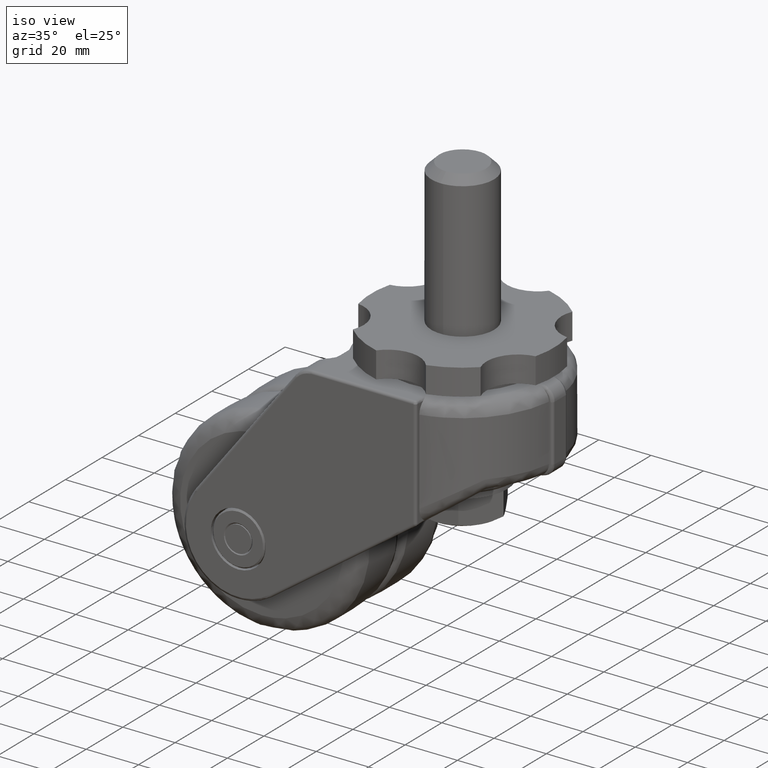
[diagram: clean part render]
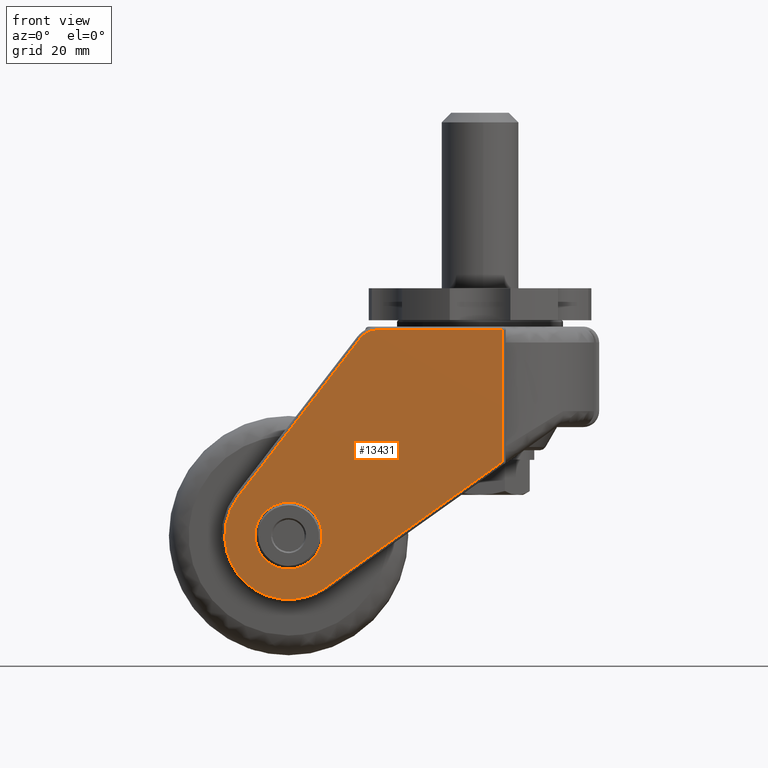
[diagram: tour spotlight — one face highlighted and labeled with its STEP entity id]
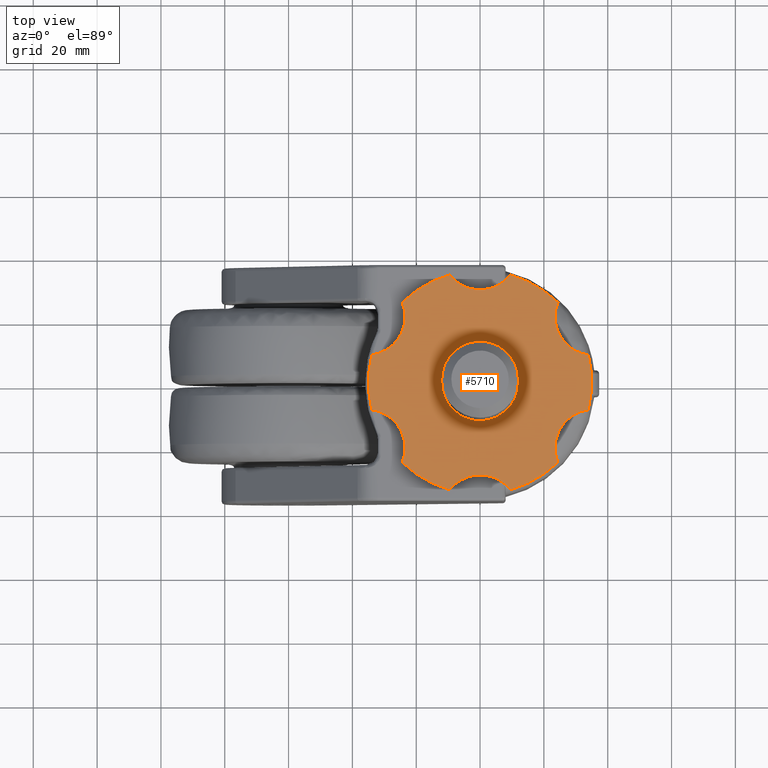
[diagram: tour spotlight — one face highlighted and labeled with its STEP entity id]
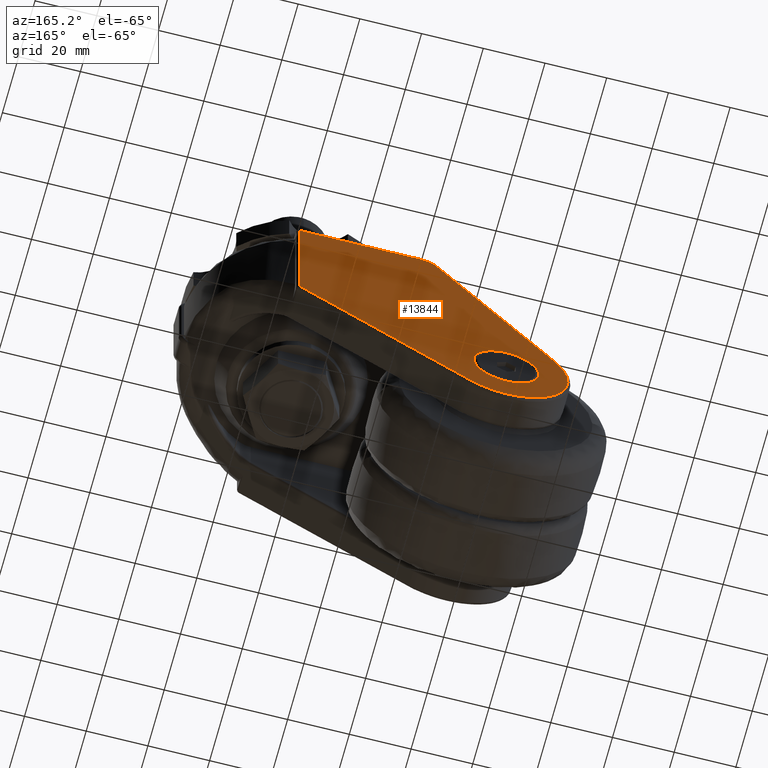
[diagram: tour spotlight — one face highlighted and labeled with its STEP entity id]
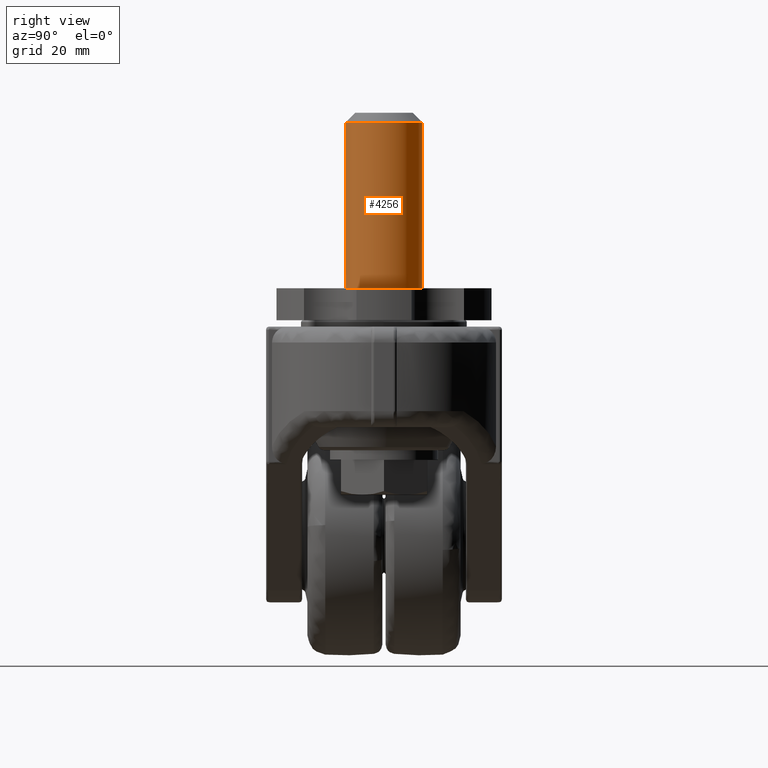
[diagram: tour spotlight — one face highlighted and labeled with its STEP entity id]
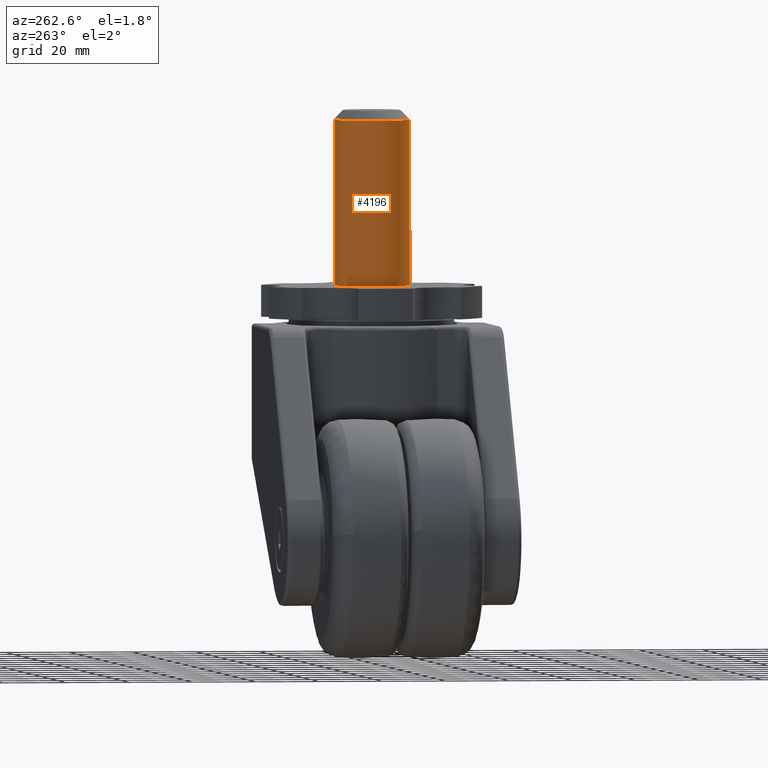
[diagram: tour spotlight — one face highlighted and labeled with its STEP entity id]
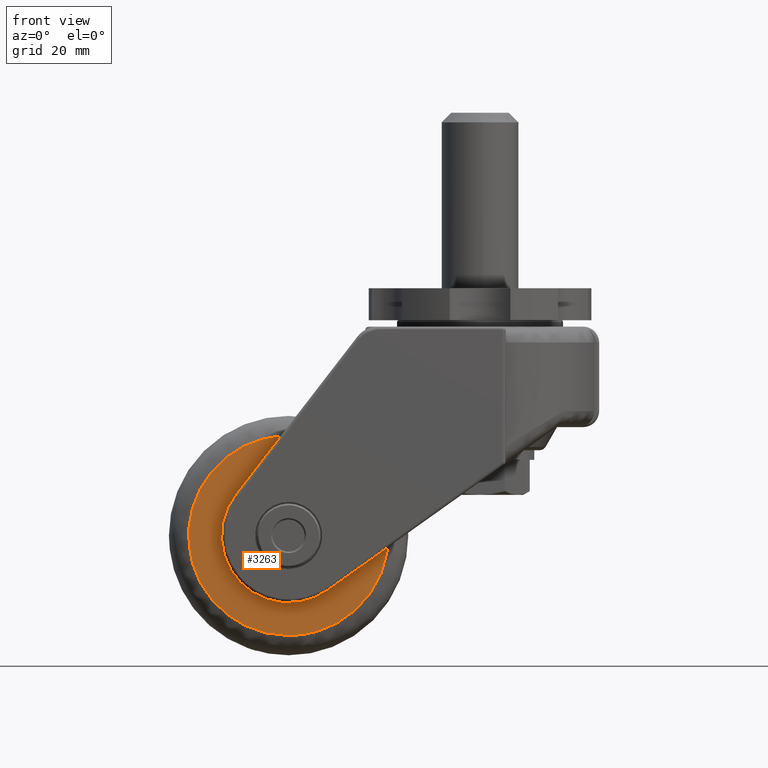
[diagram: tour spotlight — one face highlighted and labeled with its STEP entity id]
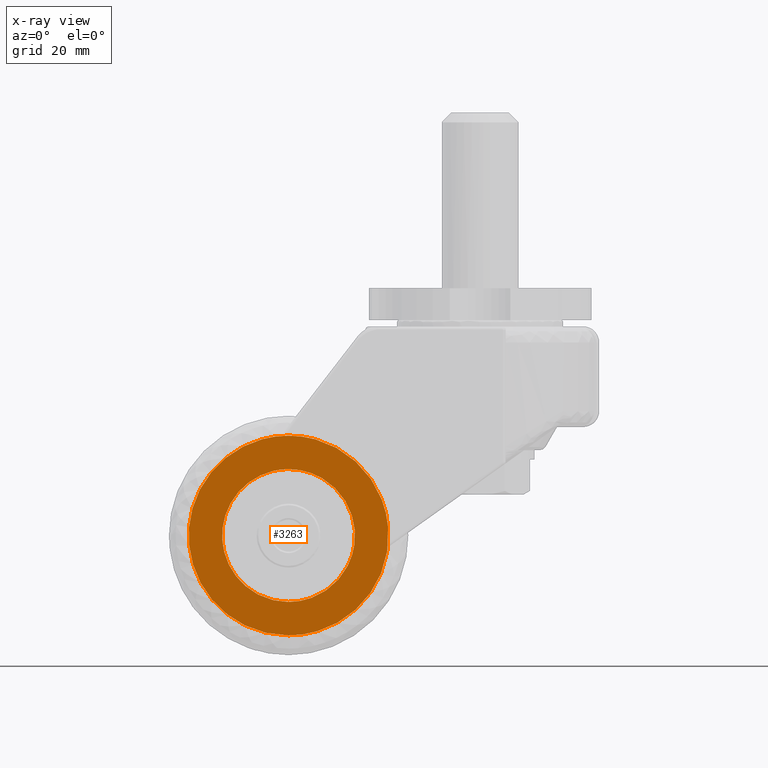
[diagram: x-ray of the same camera — body ghosted, this tour face saturated]
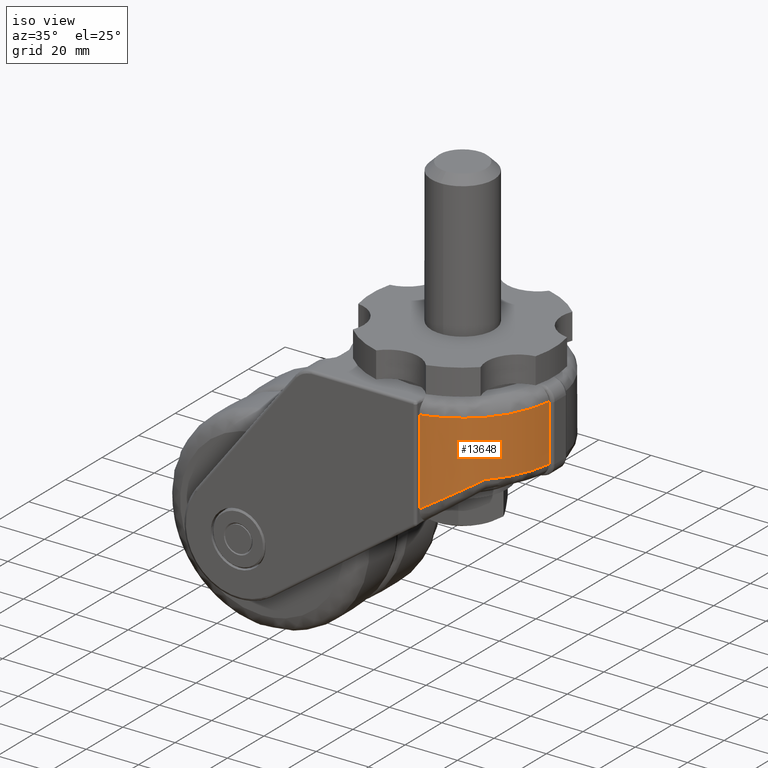
[diagram: tour spotlight — one face highlighted and labeled with its STEP entity id]
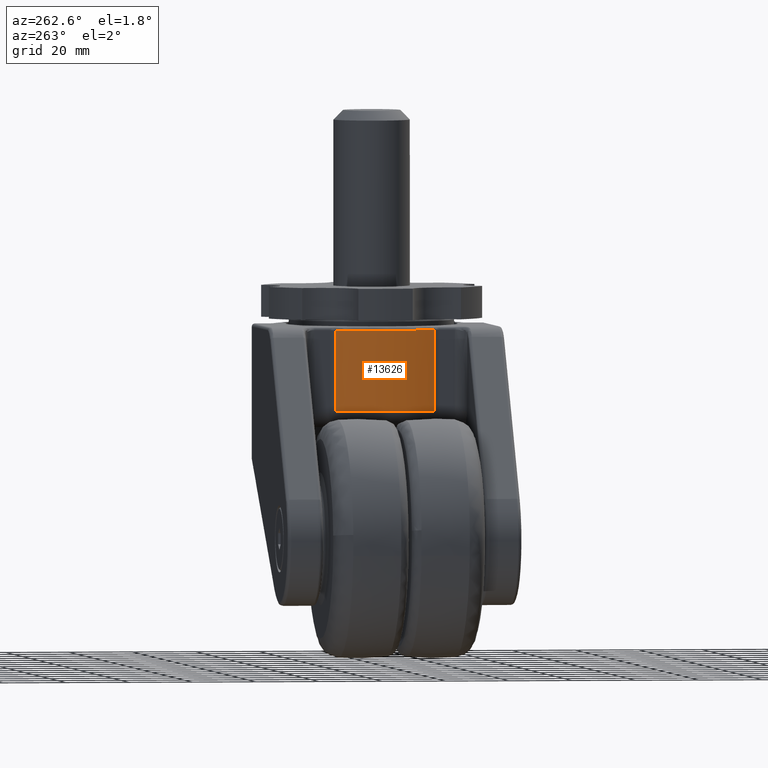
[diagram: tour spotlight — one face highlighted and labeled with its STEP entity id]
A machine part: a face-by-face anatomy tour. The part has 246 B-rep faces; the first image is the clean iso view, then the 8 largest visible faces are spotlighted one at a time (largest first), each with its STEP entity span.

Face 1 — front view, entity #13431. In plain terms, the highlighted face is a freeform B-spline surface patch.
Definition (entity closure, byte-faithful):
#6366=CARTESIAN_POINT('',(-70.426600026808671,-36.950000000000003,-73.260640536021242));
#6367=VERTEX_POINT('',#6366);
#6368=CARTESIAN_POINT('',(-60.0,-36.950000000000003,-84.999999999999986));
#6369=VERTEX_POINT('',#6368);
#6370=CARTESIAN_POINT('',(-70.426600026808671,-36.950000000000003,-73.260640536021242));
#6371=CARTESIAN_POINT('',(-70.500000000000000,-36.949999999999989,-73.878146743571278));
#6372=CARTESIAN_POINT('',(-70.500000000000000,-36.950000000000003,-74.500000000000000));
#6373=CARTESIAN_POINT('',(-70.500000000000000,-36.950000000000003,-84.999999999999986));
#6374=CARTESIAN_POINT('',(-60.0,-36.950000000000003,-84.999999999999986));
#6382=(BOUNDED_CURVE()B_SPLINE_CURVE(2,(#6370,#6371,#6372,#6373,#6374),.UNSPECIFIED.,.F.,.U.)B_SPLINE_CURVE_WITH_KNOTS((3,2,3),(0.229562473512961,0.250000000000000,0.500000000000000),.UNSPECIFIED.)CURVE()GEOMETRIC_REPRESENTATION_ITEM()RATIONAL_B_SPLINE_CURVE((0.956026754182626,0.976055948330503,1.0,0.707106781186547,1.0))REPRESENTATION_ITEM(''));
#6383=EDGE_CURVE('',#6367,#6369,#6382,.T.);
#6385=CARTESIAN_POINT('',(-49.519584616581469,-36.950000000000003,-75.141009665297062));
#6386=VERTEX_POINT('',#6385);
#6387=CARTESIAN_POINT('',(-60.0,-36.950000000000003,-84.999999999999986));
#6388=CARTESIAN_POINT('',(-50.122586297832193,-36.950000000000003,-85.000000000000014));
#6389=CARTESIAN_POINT('',(-49.519584616581461,-36.950000000000003,-75.141009665297062));
#6397=(BOUNDED_CURVE()B_SPLINE_CURVE(2,(#6387,#6388,#6389),.UNSPECIFIED.,.F.,.U.)B_SPLINE_CURVE_WITH_KNOTS((3,3),(0.500000000000000,0.739332962236005),.UNSPECIFIED.)CURVE()GEOMETRIC_REPRESENTATION_ITEM()RATIONAL_B_SPLINE_CURVE((1.0,0.719603993290152,0.976072041660422))REPRESENTATION_ITEM(''));
#6398=EDGE_CURVE('',#6369,#6386,#6397,.T.);
#6465=CARTESIAN_POINT('',(-60.0,-36.950000000000003,-64.0));
#6466=VERTEX_POINT('',#6465);
#6467=CARTESIAN_POINT('',(-60.0,-36.950000000000003,-64.0));
#6468=CARTESIAN_POINT('',(-69.325832522340235,-36.950000000000010,-64.0));
#6469=CARTESIAN_POINT('',(-70.426600026808671,-36.950000000000010,-73.260640536021242));
#6477=(BOUNDED_CURVE()B_SPLINE_CURVE(2,(#6467,#6468,#6469),.UNSPECIFIED.,.F.,.U.)B_SPLINE_CURVE_WITH_KNOTS((3,3),(0.0,0.229562473512961),.UNSPECIFIED.)CURVE()GEOMETRIC_REPRESENTATION_ITEM()RATIONAL_B_SPLINE_CURVE((1.0,0.731050832856044,0.956026754182626))REPRESENTATION_ITEM(''));
#6478=EDGE_CURVE('',#6466,#6367,#6477,.T.);
#6512=CARTESIAN_POINT('',(-49.519584616581469,-36.950000000000010,-75.141009665297062));
#6513=CARTESIAN_POINT('',(-49.500000000000000,-36.950000000000003,-74.820804014816773));
#6514=CARTESIAN_POINT('',(-49.499999999999993,-36.950000000000003,-74.500000000000000));
#6515=CARTESIAN_POINT('',(-49.499999999999979,-36.950000000000003,-64.0));
#6516=CARTESIAN_POINT('',(-60.0,-36.950000000000003,-64.0));
#6524=(BOUNDED_CURVE()B_SPLINE_CURVE(2,(#6512,#6513,#6514,#6515,#6516),.UNSPECIFIED.,.F.,.U.)B_SPLINE_CURVE_WITH_KNOTS((3,2,3),(0.739332962236006,0.750000000000000,1.0),.UNSPECIFIED.)CURVE()GEOMETRIC_REPRESENTATION_ITEM()RATIONAL_B_SPLINE_CURVE((0.976072041660424,0.987502787896397,1.0,0.707106781186547,1.0))REPRESENTATION_ITEM(''));
#6525=EDGE_CURVE('',#6386,#6466,#6524,.T.);
#12871=CARTESIAN_POINT('',(7.0,-36.950000000000003,-10.0));
#12872=VERTEX_POINT('',#12871);
#12895=CARTESIAN_POINT('',(-32.067278000000002,-36.950000000000003,-10.0));
#12896=VERTEX_POINT('',#12895);
#12910=CARTESIAN_POINT('',(7.0,-36.950000000000003,-10.0));
#12911=CARTESIAN_POINT('',(-32.067278000000002,-36.950000000000003,-10.0));
#12912=QUASI_UNIFORM_CURVE('',1,(#12910,#12911),.UNSPECIFIED.,.F.,.U.);
#12913=EDGE_CURVE('',#12872,#12896,#12912,.T.);
#12937=CARTESIAN_POINT('',(-37.610066991227747,-36.950000000000003,-12.724781853668199));
#12938=VERTEX_POINT('',#12937);
#12954=CARTESIAN_POINT('',(-32.067278000000002,-36.950000000000003,-10.0));
#12955=CARTESIAN_POINT('',(-35.508410795396685,-36.950000000000003,-10.000000000000002));
#12956=CARTESIAN_POINT('',(-37.610066991227740,-36.950000000000003,-12.724781853668210));
#12964=(BOUNDED_CURVE()B_SPLINE_CURVE(2,(#12954,#12955,#12956),.UNSPECIFIED.,.F.,.U.)CURVE()GEOMETRIC_REPRESENTATION_ITEM()QUASI_UNIFORM_CURVE()RATIONAL_B_SPLINE_CURVE((1.0,0.897425609584430,1.0))REPRESENTATION_ITEM(''));
#12965=EDGE_CURVE('',#12896,#12938,#12964,.T.);
#13056=CARTESIAN_POINT('',(-75.838134305871904,-36.950000000000003,-62.287158341862700));
#13057=VERTEX_POINT('',#13056);
#13073=CARTESIAN_POINT('',(-37.610066991227747,-36.950000000000003,-12.724781853668199));
#13074=CARTESIAN_POINT('',(-75.838134305871904,-36.950000000000003,-62.287158341862700));
#13075=QUASI_UNIFORM_CURVE('',1,(#13073,#13074),.UNSPECIFIED.,.F.,.U.);
#13076=EDGE_CURVE('',#12938,#13057,#13075,.T.);
#13101=CARTESIAN_POINT('',(7.0,-36.950000000000003,-51.369818000000002));
#13102=VERTEX_POINT('',#13101);
#13124=CARTESIAN_POINT('',(7.0,-36.950000000000003,-51.369818000000002));
#13125=CARTESIAN_POINT('',(7.0,-36.950000000000003,-10.0));
#13126=QUASI_UNIFORM_CURVE('',1,(#13124,#13125),.UNSPECIFIED.,.F.,.U.);
#13127=EDGE_CURVE('',#13102,#12872,#13126,.T.);
#13157=CARTESIAN_POINT('',(-48.404258801982998,-36.950000000000003,-90.795360875679009));
#13158=VERTEX_POINT('',#13157);
#13174=CARTESIAN_POINT('',(-75.838134305871904,-36.950000000000003,-62.287158341862700));
#13175=CARTESIAN_POINT('',(-86.368033732910504,-36.949999999999996,-75.942781320518606));
#13176=CARTESIAN_POINT('',(-74.411067893690628,-36.950000000000003,-88.367989117512266));
#13177=CARTESIAN_POINT('',(-62.454102054470788,-36.949999999999996,-100.793196914505960));
#13178=CARTESIAN_POINT('',(-48.404258801982976,-36.950000000000003,-90.795360875679023));
#13186=(BOUNDED_CURVE()B_SPLINE_CURVE(2,(#13174,#13175,#13176,#13177,#13178),.UNSPECIFIED.,.F.,.U.)B_SPLINE_CURVE_WITH_KNOTS((3,2,3),(0.0,0.500000000000000,1.0),.UNSPECIFIED.)CURVE()GEOMETRIC_REPRESENTATION_ITEM()RATIONAL_B_SPLINE_CURVE((1.0,0.757361269150631,1.0,0.757361269150631,1.0))REPRESENTATION_ITEM(''));
#13187=EDGE_CURVE('',#13057,#13158,#13186,.T.);
#13280=CARTESIAN_POINT('',(-2.476484337763490,-36.950000000000003,-58.113262457790398));
#13281=VERTEX_POINT('',#13280);
#13297=CARTESIAN_POINT('',(-48.404258801982998,-36.950000000000003,-90.795360875679009));
#13298=CARTESIAN_POINT('',(-2.476484337763490,-36.950000000000003,-58.113262457790398));
#13299=QUASI_UNIFORM_CURVE('',1,(#13297,#13298),.UNSPECIFIED.,.F.,.U.);
#13300=EDGE_CURVE('',#13158,#13281,#13299,.T.);
#13325=CARTESIAN_POINT('',(1.316910194801920,-36.950000000000003,-55.413891580360797));
#13326=VERTEX_POINT('',#13325);
#13350=CARTESIAN_POINT('',(1.316910194801920,-36.950000000000003,-55.413891580360797));
#13351=CARTESIAN_POINT('',(7.0,-36.950000000000003,-51.369818000000002));
#13352=QUASI_UNIFORM_CURVE('',1,(#13350,#13351),.UNSPECIFIED.,.F.,.U.);
#13353=EDGE_CURVE('',#13326,#13102,#13352,.T.);
#13399=CARTESIAN_POINT('',(-2.476484337763490,-36.950000000000003,-58.113262457790398));
#13400=CARTESIAN_POINT('',(-1.844251525508573,-36.950000000000003,-57.663367033914668));
#13401=CARTESIAN_POINT('',(-0.578336216968395,-36.950000000000010,-56.765614804404827));
#13402=CARTESIAN_POINT('',(0.684677797505743,-36.950000000000003,-55.863786708952837));
#13403=CARTESIAN_POINT('',(1.316910194801934,-36.950000000000003,-55.413891580360797));
#13404=B_SPLINE_CURVE_WITH_KNOTS('',3,(#13399,#13400,#13401,#13402,#13403),.UNSPECIFIED.,.F.,.U.,(4,1,4),(0.0,0.500000000000000,1.0),.UNSPECIFIED.);
#13405=EDGE_CURVE('',#13281,#13326,#13404,.T.);
#13410=CARTESIAN_POINT('',(-84.345105404669482,-36.950000000000003,-98.698914646242670));
#13411=CARTESIAN_POINT('',(11.345626263763270,-36.950000000000003,-98.698914646242670));
#13412=CARTESIAN_POINT('',(-84.345105404669482,-36.950000000000003,-5.780262867904819));
#13413=CARTESIAN_POINT('',(11.345626263763270,-36.950000000000003,-5.780262867904819));
#13414=B_SPLINE_SURFACE_WITH_KNOTS('',1,1,((#13410,#13412),(#13411,#13413)),.UNSPECIFIED.,.F.,.F.,.U.,(2,2),(2,2),(0.0,95.690731668432747),(0.0,92.918651778337846),.UNSPECIFIED.);
#13415=ORIENTED_EDGE('',*,*,#13405,.T.);
#13416=ORIENTED_EDGE('',*,*,#13353,.T.);
#13417=ORIENTED_EDGE('',*,*,#13127,.T.);
#13418=ORIENTED_EDGE('',*,*,#12913,.T.);
#13419=ORIENTED_EDGE('',*,*,#12965,.T.);
#13420=ORIENTED_EDGE('',*,*,#13076,.T.);
#13421=ORIENTED_EDGE('',*,*,#13187,.T.);
#13422=ORIENTED_EDGE('',*,*,#13300,.T.);
#13423=EDGE_LOOP('',(#13415,#13416,#13417,#13418,#13419,#13420,#13421,#13422));
#13424=FACE_OUTER_BOUND('',#13423,.T.);
#13425=ORIENTED_EDGE('',*,*,#6398,.F.);
#13426=ORIENTED_EDGE('',*,*,#6383,.F.);
#13427=ORIENTED_EDGE('',*,*,#6478,.F.);
#13428=ORIENTED_EDGE('',*,*,#6525,.F.);
#13429=EDGE_LOOP('',(#13425,#13426,#13427,#13428));
#13430=FACE_BOUND('',#13429,.T.);
#13431=ADVANCED_FACE('',(#13424,#13430),#13414,.T.);

Face 2 — top view, entity #5710. In plain terms, the highlighted face is a freeform B-spline surface patch.
Definition (entity closure, byte-faithful):
#4147=CARTESIAN_POINT('',(-12.0,0.0,3.0));
#4148=VERTEX_POINT('',#4147);
#4149=CARTESIAN_POINT('',(-0.941486971500822,11.963009750142280,2.999999999999873));
#4150=VERTEX_POINT('',#4149);
#4151=CARTESIAN_POINT('',(-12.0,0.0,3.0));
#4152=CARTESIAN_POINT('',(-12.000000000000002,11.092706527315537,3.000000000000001));
#4153=CARTESIAN_POINT('',(-0.941486971500822,11.963009750142282,2.999999999999873));
#4161=(BOUNDED_CURVE()B_SPLINE_CURVE(2,(#4151,#4152,#4153),.UNSPECIFIED.,.F.,.U.)B_SPLINE_CURVE_WITH_KNOTS((3,3),(0.500000000000000,0.736331618422545),.UNSPECIFIED.)CURVE()GEOMETRIC_REPRESENTATION_ITEM()RATIONAL_B_SPLINE_CURVE((1.0,0.723120286291312,0.969724019375786))REPRESENTATION_ITEM(''));
#4162=EDGE_CURVE('',#4148,#4150,#4161,.T.);
#4164=CARTESIAN_POINT('',(0.941486971500823,-11.963009750142280,2.999999999999874));
#4165=VERTEX_POINT('',#4164);
#4166=CARTESIAN_POINT('',(0.941486971500823,-11.963009750142286,2.999999999999874));
#4167=CARTESIAN_POINT('',(0.471470144018638,-11.999999999999998,3.000000000000000));
#4168=CARTESIAN_POINT('',(0.0,-12.0,3.0));
#4169=CARTESIAN_POINT('',(-12.0,-12.0,3.0));
#4170=CARTESIAN_POINT('',(-12.0,0.0,3.0));
#4178=(BOUNDED_CURVE()B_SPLINE_CURVE(2,(#4166,#4167,#4168,#4169,#4170),.UNSPECIFIED.,.F.,.U.)B_SPLINE_CURVE_WITH_KNOTS((3,2,3),(0.236331618422545,0.250000000000000,0.500000000000000),.UNSPECIFIED.)CURVE()GEOMETRIC_REPRESENTATION_ITEM()RATIONAL_B_SPLINE_CURVE((0.969724019375786,0.983986494895235,1.0,0.707106781186548,1.0))REPRESENTATION_ITEM(''));
#4179=EDGE_CURVE('',#4165,#4148,#4178,.T.);
#4219=CARTESIAN_POINT('',(12.0,0.0,3.0));
#4220=VERTEX_POINT('',#4219);
#4221=CARTESIAN_POINT('',(-0.941486971500822,11.963009750142282,2.999999999999873));
#4222=CARTESIAN_POINT('',(-0.471470144018637,11.999999999999998,3.000000000000000));
#4223=CARTESIAN_POINT('',(0.0,12.0,3.0));
#4224=CARTESIAN_POINT('',(12.0,12.0,3.0));
#4225=CARTESIAN_POINT('',(12.0,0.0,3.0));
#4233=(BOUNDED_CURVE()B_SPLINE_CURVE(2,(#4221,#4222,#4223,#4224,#4225),.UNSPECIFIED.,.F.,.U.)B_SPLINE_CURVE_WITH_KNOTS((3,2,3),(0.736331618422545,0.750000000000000,1.0),.UNSPECIFIED.)CURVE()GEOMETRIC_REPRESENTATION_ITEM()RATIONAL_B_SPLINE_CURVE((0.969724019375786,0.983986494895235,1.0,0.707106781186548,1.0))REPRESENTATION_ITEM(''));
#4234=EDGE_CURVE('',#4150,#4220,#4233,.T.);
#4241=CARTESIAN_POINT('',(12.0,0.0,3.0));
#4242=CARTESIAN_POINT('',(12.0,-11.092706527315533,3.000000000000000));
#4243=CARTESIAN_POINT('',(0.941486971500823,-11.963009750142286,2.999999999999874));
#4251=(BOUNDED_CURVE()B_SPLINE_CURVE(2,(#4241,#4242,#4243),.UNSPECIFIED.,.F.,.U.)B_SPLINE_CURVE_WITH_KNOTS((3,3),(0.0,0.236331618422545),.UNSPECIFIED.)CURVE()GEOMETRIC_REPRESENTATION_ITEM()RATIONAL_B_SPLINE_CURVE((1.0,0.723120286291313,0.969724019375786))REPRESENTATION_ITEM(''));
#4252=EDGE_CURVE('',#4220,#4165,#4251,.T.);
#5039=CARTESIAN_POINT('',(-33.925804934236801,8.604635934431780,3.0));
#5040=VERTEX_POINT('',#5039);
#5041=CARTESIAN_POINT('',(-33.925805495054753,-8.604635730023711,3.0));
#5042=VERTEX_POINT('',#5041);
#5043=CARTESIAN_POINT('',(-33.925804934236787,8.604635934431769,3.0));
#5044=CARTESIAN_POINT('',(-36.108207333125854,0.000000173324442,3.000000000000000));
#5045=CARTESIAN_POINT('',(-33.925805495054753,-8.604635730023711,3.0));
#5053=(BOUNDED_CURVE()B_SPLINE_CURVE(2,(#5043,#5044,#5045),.UNSPECIFIED.,.F.,.U.)CURVE()GEOMETRIC_REPRESENTATION_ITEM()QUASI_UNIFORM_CURVE()RATIONAL_B_SPLINE_CURVE((1.0,0.969308713586864,1.0))REPRESENTATION_ITEM(''));
#5054=EDGE_CURVE('',#5040,#5042,#5053,.T.);
#5100=CARTESIAN_POINT('',(-24.414735776652751,-25.078290949668649,3.0));
#5101=VERTEX_POINT('',#5100);
#5102=CARTESIAN_POINT('',(-24.414735776652751,-25.078290949668649,3.0));
#5103=CARTESIAN_POINT('',(-22.160541410148308,-19.616816971440102,3.000000000000000));
#5104=CARTESIAN_POINT('',(-25.114737232491709,-14.499999865064630,3.0));
#5105=CARTESIAN_POINT('',(-28.068933054835121,-9.383182758689154,3.000000000000000));
#5106=CARTESIAN_POINT('',(-33.925805495054753,-8.604635730023713,3.0));
#5114=(BOUNDED_CURVE()B_SPLINE_CURVE(2,(#5102,#5103,#5104,#5105,#5106),.UNSPECIFIED.,.F.,.U.)B_SPLINE_CURVE_WITH_KNOTS((3,2,3),(0.0,0.500000000000000,1.0),.UNSPECIFIED.)CURVE()GEOMETRIC_REPRESENTATION_ITEM()RATIONAL_B_SPLINE_CURVE((1.0,0.897149960549966,1.0,0.897149960549966,1.0))REPRESENTATION_ITEM(''));
#5115=EDGE_CURVE('',#5101,#5042,#5114,.T.);
#5157=CARTESIAN_POINT('',(-9.511069392596539,-33.682926882337902,3.0));
#5158=VERTEX_POINT('',#5157);
#5159=CARTESIAN_POINT('',(-24.414735776652751,-25.078290949668649,3.0));
#5160=CARTESIAN_POINT('',(-18.054103774965707,-31.270624789537539,3.0));
#5161=CARTESIAN_POINT('',(-9.511069392596539,-33.682926882337902,3.0));
#5169=(BOUNDED_CURVE()B_SPLINE_CURVE(2,(#5159,#5160,#5161),.UNSPECIFIED.,.F.,.U.)CURVE()GEOMETRIC_REPRESENTATION_ITEM()QUASI_UNIFORM_CURVE()RATIONAL_B_SPLINE_CURVE((1.0,0.969308713202774,1.0))REPRESENTATION_ITEM(''));
#5170=EDGE_CURVE('',#5101,#5158,#5169,.T.);
#5210=CARTESIAN_POINT('',(9.511069157583881,-33.682926884100453,3.0));
#5211=VERTEX_POINT('',#5210);
#5212=CARTESIAN_POINT('',(9.511069157583881,-33.682926884100453,3.0));
#5213=CARTESIAN_POINT('',(5.908391493574867,-28.999999965065786,3.000000000000000));
#5214=CARTESIAN_POINT('',(-0.000000070951713,-29.0,3.0));
#5215=CARTESIAN_POINT('',(-5.908391635478290,-29.000000034934217,3.000000000000000));
#5216=CARTESIAN_POINT('',(-9.511069392596534,-33.682926882337910,3.0));
#5224=(BOUNDED_CURVE()B_SPLINE_CURVE(2,(#5212,#5213,#5214,#5215,#5216),.UNSPECIFIED.,.F.,.U.)B_SPLINE_CURVE_WITH_KNOTS((3,2,3),(0.0,0.500000000000000,1.0),.UNSPECIFIED.)CURVE()GEOMETRIC_REPRESENTATION_ITEM()RATIONAL_B_SPLINE_CURVE((1.0,0.897149958988129,1.0,0.897149958988129,1.0))REPRESENTATION_ITEM(''));
#5225=EDGE_CURVE('',#5211,#5158,#5224,.T.);
#5267=CARTESIAN_POINT('',(24.414735102458049,-25.078291152314200,3.0));
#5268=VERTEX_POINT('',#5267);
#5269=CARTESIAN_POINT('',(9.511069157583878,-33.682926884100453,3.0));
#5270=CARTESIAN_POINT('',(18.054103368746318,-31.270624963974704,3.000000000000001));
#5271=CARTESIAN_POINT('',(24.414735102458049,-25.078291152314200,3.0));
#5279=(BOUNDED_CURVE()B_SPLINE_CURVE(2,(#5269,#5270,#5271),.UNSPECIFIED.,.F.,.U.)CURVE()GEOMETRIC_REPRESENTATION_ITEM()QUASI_UNIFORM_CURVE()RATIONAL_B_SPLINE_CURVE((1.0,0.969308714599837,1.0))REPRESENTATION_ITEM(''));
#5280=EDGE_CURVE('',#5211,#5268,#5279,.T.);
#5320=CARTESIAN_POINT('',(33.925804934236801,-8.604635934431721,3.0));
#5321=VERTEX_POINT('',#5320);
#5322=CARTESIAN_POINT('',(33.925804934236801,-8.604635934431721,3.0));
#5323=CARTESIAN_POINT('',(28.068932211495977,-9.383182535004474,3.000000000000000));
#5324=CARTESIAN_POINT('',(25.114736256691110,-14.499999823149860,3.0));
#5325=CARTESIAN_POINT('',(22.160540301886261,-19.616817111295237,3.000000000000000));
#5326=CARTESIAN_POINT('',(24.414735102458060,-25.078291152314200,3.0));
#5334=(BOUNDED_CURVE()B_SPLINE_CURVE(2,(#5322,#5323,#5324,#5325,#5326),.UNSPECIFIED.,.F.,.U.)B_SPLINE_CURVE_WITH_KNOTS((3,2,3),(0.0,0.500000000000000,1.0),.UNSPECIFIED.)CURVE()GEOMETRIC_REPRESENTATION_ITEM()RATIONAL_B_SPLINE_CURVE((1.0,0.897149953923727,1.0,0.897149953923727,1.0))REPRESENTATION_ITEM(''));
#5335=EDGE_CURVE('',#5321,#5268,#5334,.T.);
#5377=CARTESIAN_POINT('',(33.925804495054663,8.604635730023722,3.0));
#5378=VERTEX_POINT('',#5377);
#5379=CARTESIAN_POINT('',(33.925804934236801,-8.604635934431729,3.0));
#5380=CARTESIAN_POINT('',(36.108207365290191,-0.000000046508894,3.000000000000000));
#5381=CARTESIAN_POINT('',(33.925804495054663,8.604635730023722,3.0));
#5389=(BOUNDED_CURVE()B_SPLINE_CURVE(2,(#5379,#5380,#5381),.UNSPECIFIED.,.F.,.U.)CURVE()GEOMETRIC_REPRESENTATION_ITEM()QUASI_UNIFORM_CURVE()RATIONAL_B_SPLINE_CURVE((1.0,0.969308712723427,1.0))REPRESENTATION_ITEM(''));
#5390=EDGE_CURVE('',#5321,#5378,#5389,.T.);
#5430=CARTESIAN_POINT('',(24.414735776652751,25.078290949668649,3.0));
#5431=VERTEX_POINT('',#5430);
#5432=CARTESIAN_POINT('',(24.414735776652751,25.078290949668649,3.0));
#5433=CARTESIAN_POINT('',(22.160540336856496,19.616817286234628,3.000000000000000));
#5434=CARTESIAN_POINT('',(25.114736137110540,14.500000030269490,3.0));
#5435=CARTESIAN_POINT('',(28.068931937364578,9.383182774304354,3.000000000000000));
#5436=CARTESIAN_POINT('',(33.925804495054649,8.604635730023711,3.0));
#5444=(BOUNDED_CURVE()B_SPLINE_CURVE(2,(#5432,#5433,#5434,#5435,#5436),.UNSPECIFIED.,.F.,.U.)B_SPLINE_CURVE_WITH_KNOTS((3,2,3),(0.0,0.500000000000000,1.0),.UNSPECIFIED.)CURVE()GEOMETRIC_REPRESENTATION_ITEM()RATIONAL_B_SPLINE_CURVE((1.0,0.897149957038940,1.0,0.897149957038940,1.0))REPRESENTATION_ITEM(''));
#5445=EDGE_CURVE('',#5431,#5378,#5444,.T.);
#5487=CARTESIAN_POINT('',(9.511069392596530,33.682926882337902,3.0));
#5488=VERTEX_POINT('',#5487);
#5489=CARTESIAN_POINT('',(24.414735776652751,25.078290949668649,3.0));
#5490=CARTESIAN_POINT('',(18.054103774965704,31.270624789537546,3.000000000000000));
#5491=CARTESIAN_POINT('',(9.511069392596530,33.682926882337902,3.0));
#5499=(BOUNDED_CURVE()B_SPLINE_CURVE(2,(#5489,#5490,#5491),.UNSPECIFIED.,.F.,.U.)CURVE()GEOMETRIC_REPRESENTATION_ITEM()QUASI_UNIFORM_CURVE()RATIONAL_B_SPLINE_CURVE((1.0,0.969308713202774,1.0))REPRESENTATION_ITEM(''));
#5500=EDGE_CURVE('',#5431,#5488,#5499,.T.);
#5540=CARTESIAN_POINT('',(-9.511069157583881,33.682926884100453,3.0));
#5541=VERTEX_POINT('',#5540);
#5542=CARTESIAN_POINT('',(-9.511069157583881,33.682926884100453,3.0));
#5543=CARTESIAN_POINT('',(-5.908391493574871,28.999999965065797,3.000000000000000));
#5544=CARTESIAN_POINT('',(0.000000070951707,29.0,3.0));
#5545=CARTESIAN_POINT('',(5.908391635478282,29.000000034934210,3.000000000000000));
#5546=CARTESIAN_POINT('',(9.511069392596527,33.682926882337902,3.0));
#5554=(BOUNDED_CURVE()B_SPLINE_CURVE(2,(#5542,#5543,#5544,#5545,#5546),.UNSPECIFIED.,.F.,.U.)B_SPLINE_CURVE_WITH_KNOTS((3,2,3),(0.0,0.500000000000000,1.0),.UNSPECIFIED.)CURVE()GEOMETRIC_REPRESENTATION_ITEM()RATIONAL_B_SPLINE_CURVE((1.0,0.897149958988130,1.0,0.897149958988130,1.0))REPRESENTATION_ITEM(''));
#5555=EDGE_CURVE('',#5541,#5488,#5554,.T.);
#5597=CARTESIAN_POINT('',(-24.414735776652702,25.078290949668698,3.0));
#5598=VERTEX_POINT('',#5597);
#5599=CARTESIAN_POINT('',(-9.511069157583881,33.682926884100453,3.0));
#5600=CARTESIAN_POINT('',(-18.054103688543037,31.270624873673498,3.000000000000000));
#5601=CARTESIAN_POINT('',(-24.414735776652702,25.078290949668698,3.0));
#5609=(BOUNDED_CURVE()B_SPLINE_CURVE(2,(#5599,#5600,#5601),.UNSPECIFIED.,.F.,.U.)CURVE()GEOMETRIC_REPRESENTATION_ITEM()QUASI_UNIFORM_CURVE()RATIONAL_B_SPLINE_CURVE((1.0,0.969308712406765,1.0))REPRESENTATION_ITEM(''));
#5610=EDGE_CURVE('',#5541,#5598,#5609,.T.);
#5650=CARTESIAN_POINT('',(-33.925804934236801,8.604635934431780,3.0));
#5651=CARTESIAN_POINT('',(-28.068932694332414,9.383183096116445,3.0));
#5652=CARTESIAN_POINT('',(-25.114737086776060,14.500000117451551,3.0));
#5653=CARTESIAN_POINT('',(-22.160541479219702,19.616817138786647,3.0));
#5654=CARTESIAN_POINT('',(-24.414735776652702,25.078290949668698,3.0));
#5662=(BOUNDED_CURVE()B_SPLINE_CURVE(2,(#5650,#5651,#5652,#5653,#5654),.UNSPECIFIED.,.F.,.U.)B_SPLINE_CURVE_WITH_KNOTS((3,2,3),(0.0,0.500000000000000,1.0),.UNSPECIFIED.)CURVE()GEOMETRIC_REPRESENTATION_ITEM()RATIONAL_B_SPLINE_CURVE((1.0,0.897149965913833,1.0,0.897149965913833,1.0))REPRESENTATION_ITEM(''));
#5663=EDGE_CURVE('',#5040,#5598,#5662,.T.);
#5685=CARTESIAN_POINT('',(-38.496499985956241,-37.047850516871527,3.0));
#5686=CARTESIAN_POINT('',(38.496501624951968,-37.047850516871527,3.0));
#5687=CARTESIAN_POINT('',(-38.496499985956241,37.047852926062212,3.0));
#5688=CARTESIAN_POINT('',(38.496501624951968,37.047852926062212,3.0));
#5689=B_SPLINE_SURFACE_WITH_KNOTS('',1,1,((#5685,#5687),(#5686,#5688)),.UNSPECIFIED.,.F.,.F.,.U.,(2,2),(2,2),(0.0,76.993001610908209),(0.0,74.095703442933740),.UNSPECIFIED.);
#5690=ORIENTED_EDGE('',*,*,#5663,.F.);
#5691=ORIENTED_EDGE('',*,*,#5054,.T.);
#5692=ORIENTED_EDGE('',*,*,#5115,.F.);
#5693=ORIENTED_EDGE('',*,*,#5170,.T.);
#5694=ORIENTED_EDGE('',*,*,#5225,.F.);
#5695=ORIENTED_EDGE('',*,*,#5280,.T.);
#5696=ORIENTED_EDGE('',*,*,#5335,.F.);
#5697=ORIENTED_EDGE('',*,*,#5390,.T.);
#5698=ORIENTED_EDGE('',*,*,#5445,.F.);
#5699=ORIENTED_EDGE('',*,*,#5500,.T.);
#5700=ORIENTED_EDGE('',*,*,#5555,.F.);
#5701=ORIENTED_EDGE('',*,*,#5610,.T.);
#5702=EDGE_LOOP('',(#5690,#5691,#5692,#5693,#5694,#5695,#5696,#5697,#5698,#5699,#5700,#5701));
#5703=FACE_OUTER_BOUND('',#5702,.T.);
#5704=ORIENTED_EDGE('',*,*,#4252,.T.);
#5705=ORIENTED_EDGE('',*,*,#4179,.T.);
#5706=ORIENTED_EDGE('',*,*,#4162,.T.);
#5707=ORIENTED_EDGE('',*,*,#4234,.T.);
#5708=EDGE_LOOP('',(#5704,#5705,#5706,#5707));
#5709=FACE_BOUND('',#5708,.T.);
#5710=ADVANCED_FACE('',(#5703,#5709),#5689,.T.);

Face 3 — auxiliary view, entity #13844. In plain terms, the highlighted face is a freeform B-spline surface patch.
Definition (entity closure, byte-faithful):
#6180=CARTESIAN_POINT('',(-60.0,36.950000000000003,-64.0));
#6181=VERTEX_POINT('',#6180);
#6182=CARTESIAN_POINT('',(-70.467632004176096,36.950000000000003,-73.676179494581447));
#6183=VERTEX_POINT('',#6182);
#6184=CARTESIAN_POINT('',(-60.0,36.950000000000003,-64.0));
#6185=CARTESIAN_POINT('',(-69.706100161897453,36.950000000000003,-64.0));
#6186=CARTESIAN_POINT('',(-70.467632004176096,36.950000000000003,-73.676179494581447));
#6194=(BOUNDED_CURVE()B_SPLINE_CURVE(2,(#6184,#6185,#6186),.UNSPECIFIED.,.F.,.U.)B_SPLINE_CURVE_WITH_KNOTS((3,3),(0.0,0.236331300623721),.UNSPECIFIED.)CURVE()GEOMETRIC_REPRESENTATION_ITEM()RATIONAL_B_SPLINE_CURVE((1.0,0.723120658615794,0.969723356152938))REPRESENTATION_ITEM(''));
#6195=EDGE_CURVE('',#6181,#6183,#6194,.T.);
#6197=CARTESIAN_POINT('',(-49.532367995823890,36.950000000000003,-75.323820505418539));
#6198=VERTEX_POINT('',#6197);
#6199=CARTESIAN_POINT('',(-49.532367995823883,36.950000000000010,-75.323820505418539));
#6200=CARTESIAN_POINT('',(-49.499999999999993,36.949999999999996,-74.912546123857993));
#6201=CARTESIAN_POINT('',(-49.499999999999993,36.950000000000003,-74.500000000000000));
#6202=CARTESIAN_POINT('',(-49.499999999999979,36.950000000000003,-64.0));
#6203=CARTESIAN_POINT('',(-60.0,36.950000000000003,-64.0));
#6211=(BOUNDED_CURVE()B_SPLINE_CURVE(2,(#6199,#6200,#6201,#6202,#6203),.UNSPECIFIED.,.F.,.U.)B_SPLINE_CURVE_WITH_KNOTS((3,2,3),(0.736331300623721,0.750000000000000,1.0),.UNSPECIFIED.)CURVE()GEOMETRIC_REPRESENTATION_ITEM()RATIONAL_B_SPLINE_CURVE((0.969723356152938,0.983986122570753,1.0,0.707106781186547,1.0))REPRESENTATION_ITEM(''));
#6212=EDGE_CURVE('',#6198,#6181,#6211,.T.);
#6279=CARTESIAN_POINT('',(-60.0,36.950000000000003,-84.999999999999986));
#6280=VERTEX_POINT('',#6279);
#6281=CARTESIAN_POINT('',(-70.467632004176096,36.950000000000003,-73.676179494581447));
#6282=CARTESIAN_POINT('',(-70.500000000000000,36.950000000000003,-74.087453876141993));
#6283=CARTESIAN_POINT('',(-70.500000000000000,36.950000000000003,-74.500000000000000));
#6284=CARTESIAN_POINT('',(-70.500000000000000,36.950000000000003,-84.999999999999986));
#6285=CARTESIAN_POINT('',(-60.0,36.950000000000003,-84.999999999999986));
#6293=(BOUNDED_CURVE()B_SPLINE_CURVE(2,(#6281,#6282,#6283,#6284,#6285),.UNSPECIFIED.,.F.,.U.)B_SPLINE_CURVE_WITH_KNOTS((3,2,3),(0.236331300623721,0.250000000000000,0.500000000000000),.UNSPECIFIED.)CURVE()GEOMETRIC_REPRESENTATION_ITEM()RATIONAL_B_SPLINE_CURVE((0.969723356152938,0.983986122570753,1.0,0.707106781186547,1.0))REPRESENTATION_ITEM(''));
#6294=EDGE_CURVE('',#6183,#6280,#6293,.T.);
#6328=CARTESIAN_POINT('',(-60.0,36.950000000000003,-84.999999999999986));
#6329=CARTESIAN_POINT('',(-50.293899838102512,36.950000000000003,-84.999999999999986));
#6330=CARTESIAN_POINT('',(-49.532367995823890,36.950000000000003,-75.323820505418539));
#6338=(BOUNDED_CURVE()B_SPLINE_CURVE(2,(#6328,#6329,#6330),.UNSPECIFIED.,.F.,.U.)B_SPLINE_CURVE_WITH_KNOTS((3,3),(0.500000000000000,0.736331300623722),.UNSPECIFIED.)CURVE()GEOMETRIC_REPRESENTATION_ITEM()RATIONAL_B_SPLINE_CURVE((1.0,0.723120658615793,0.969723356152940))REPRESENTATION_ITEM(''));
#6339=EDGE_CURVE('',#6280,#6198,#6338,.T.);
#10863=CARTESIAN_POINT('',(7.0,36.950000000000003,-10.0));
#10864=VERTEX_POINT('',#10863);
#10880=CARTESIAN_POINT('',(-32.067278000000002,36.950000000000003,-10.0));
#10881=VERTEX_POINT('',#10880);
#10882=CARTESIAN_POINT('',(7.0,36.950000000000003,-10.0));
#10883=CARTESIAN_POINT('',(-32.067278000000002,36.950000000000003,-10.0));
#10884=QUASI_UNIFORM_CURVE('',1,(#10882,#10883),.UNSPECIFIED.,.F.,.U.);
#10885=EDGE_CURVE('',#10864,#10881,#10884,.T.);
#10929=CARTESIAN_POINT('',(-37.610066991227747,36.950000000000003,-12.724781853668199));
#10930=VERTEX_POINT('',#10929);
#10960=CARTESIAN_POINT('',(-32.067278000000002,36.950000000000003,-10.0));
#10961=CARTESIAN_POINT('',(-35.508410795396685,36.950000000000003,-10.000000000000002));
#10962=CARTESIAN_POINT('',(-37.610066991227740,36.950000000000003,-12.724781853668210));
#10970=(BOUNDED_CURVE()B_SPLINE_CURVE(2,(#10960,#10961,#10962),.UNSPECIFIED.,.F.,.U.)CURVE()GEOMETRIC_REPRESENTATION_ITEM()QUASI_UNIFORM_CURVE()RATIONAL_B_SPLINE_CURVE((1.0,0.897425609584430,1.0))REPRESENTATION_ITEM(''));
#10971=EDGE_CURVE('',#10881,#10930,#10970,.T.);
#11048=CARTESIAN_POINT('',(-75.838134305871904,36.950000000000003,-62.287158341862700));
#11049=VERTEX_POINT('',#11048);
#11071=CARTESIAN_POINT('',(-37.610066991227747,36.950000000000003,-12.724781853668199));
#11072=CARTESIAN_POINT('',(-75.838134305871904,36.950000000000003,-62.287158341862700));
#11073=QUASI_UNIFORM_CURVE('',1,(#11071,#11072),.UNSPECIFIED.,.F.,.U.);
#11074=EDGE_CURVE('',#10930,#11049,#11073,.T.);
#11093=CARTESIAN_POINT('',(7.0,36.950000000000003,-51.369818000000002));
#11094=VERTEX_POINT('',#11093);
#11110=CARTESIAN_POINT('',(7.0,36.950000000000003,-51.369818000000002));
#11111=CARTESIAN_POINT('',(7.0,36.950000000000003,-10.0));
#11112=QUASI_UNIFORM_CURVE('',1,(#11110,#11111),.UNSPECIFIED.,.F.,.U.);
#11113=EDGE_CURVE('',#11094,#10864,#11112,.T.);
#11149=CARTESIAN_POINT('',(-48.404258801982998,36.950000000000003,-90.795360875679009));
#11150=VERTEX_POINT('',#11149);
#11182=CARTESIAN_POINT('',(-75.838134305871904,36.950000000000003,-62.287158341862700));
#11183=CARTESIAN_POINT('',(-86.368033732910504,36.949999999999996,-75.942781320518606));
#11184=CARTESIAN_POINT('',(-74.411067893690628,36.950000000000003,-88.367989117512266));
#11185=CARTESIAN_POINT('',(-62.454102054470788,36.949999999999996,-100.793196914505960));
#11186=CARTESIAN_POINT('',(-48.404258801982976,36.950000000000003,-90.795360875679023));
#11194=(BOUNDED_CURVE()B_SPLINE_CURVE(2,(#11182,#11183,#11184,#11185,#11186),.UNSPECIFIED.,.F.,.U.)B_SPLINE_CURVE_WITH_KNOTS((3,2,3),(0.0,0.500000000000000,1.0),.UNSPECIFIED.)CURVE()GEOMETRIC_REPRESENTATION_ITEM()RATIONAL_B_SPLINE_CURVE((1.0,0.757361269150631,1.0,0.757361269150631,1.0))REPRESENTATION_ITEM(''));
#11195=EDGE_CURVE('',#11049,#11150,#11194,.T.);
#11272=CARTESIAN_POINT('',(-2.476484337763490,36.950000000000003,-58.113262457790398));
#11273=VERTEX_POINT('',#11272);
#11295=CARTESIAN_POINT('',(-48.404258801982998,36.950000000000003,-90.795360875679009));
#11296=CARTESIAN_POINT('',(-2.476484337763490,36.950000000000003,-58.113262457790398));
#11297=QUASI_UNIFORM_CURVE('',1,(#11295,#11296),.UNSPECIFIED.,.F.,.U.);
#11298=EDGE_CURVE('',#11150,#11273,#11297,.T.);
#11317=CARTESIAN_POINT('',(1.316910194801920,36.950000000000003,-55.413891580360797));
#11318=VERTEX_POINT('',#11317);
#11336=CARTESIAN_POINT('',(1.316910194801920,36.950000000000003,-55.413891580360797));
#11337=CARTESIAN_POINT('',(7.0,36.950000000000003,-51.369818000000002));
#11338=QUASI_UNIFORM_CURVE('',1,(#11336,#11337),.UNSPECIFIED.,.F.,.U.);
#11339=EDGE_CURVE('',#11318,#11094,#11338,.T.);
#11377=CARTESIAN_POINT('',(-2.476484337763490,36.950000000000003,-58.113262457790398));
#11378=CARTESIAN_POINT('',(-1.844251525508573,36.950000000000003,-57.663367033914668));
#11379=CARTESIAN_POINT('',(-0.578336216968395,36.950000000000010,-56.765614804404827));
#11380=CARTESIAN_POINT('',(0.684677797505743,36.950000000000003,-55.863786708952837));
#11381=CARTESIAN_POINT('',(1.316910194801934,36.950000000000003,-55.413891580360797));
#11382=B_SPLINE_CURVE_WITH_KNOTS('',3,(#11377,#11378,#11379,#11380,#11381),.UNSPECIFIED.,.F.,.U.,(4,1,4),(0.0,0.500000000000000,1.0),.UNSPECIFIED.);
#11383=EDGE_CURVE('',#11273,#11318,#11382,.T.);
#13823=CARTESIAN_POINT('',(-84.345105404669482,36.950000000000003,-5.780265209172895));
#13824=CARTESIAN_POINT('',(11.345626263763270,36.950000000000003,-5.780265209172894));
#13825=CARTESIAN_POINT('',(-84.345105404669482,36.950000000000003,-98.698915326063116));
#13826=CARTESIAN_POINT('',(11.345626263763270,36.950000000000003,-98.698915326063101));
#13827=B_SPLINE_SURFACE_WITH_KNOTS('',1,1,((#13823,#13825),(#13824,#13826)),.UNSPECIFIED.,.F.,.F.,.U.,(2,2),(2,2),(0.0,95.690731668432747),(0.0,92.918650116890220),.UNSPECIFIED.);
#13828=ORIENTED_EDGE('',*,*,#11383,.F.);
#13829=ORIENTED_EDGE('',*,*,#11298,.F.);
#13830=ORIENTED_EDGE('',*,*,#11195,.F.);
#13831=ORIENTED_EDGE('',*,*,#11074,.F.);
#13832=ORIENTED_EDGE('',*,*,#10971,.F.);
#13833=ORIENTED_EDGE('',*,*,#10885,.F.);
#13834=ORIENTED_EDGE('',*,*,#11113,.F.);
#13835=ORIENTED_EDGE('',*,*,#11339,.F.);
#13836=EDGE_LOOP('',(#13828,#13829,#13830,#13831,#13832,#13833,#13834,#13835));
#13837=FACE_OUTER_BOUND('',#13836,.T.);
#13838=ORIENTED_EDGE('',*,*,#6339,.T.);
#13839=ORIENTED_EDGE('',*,*,#6212,.T.);
#13840=ORIENTED_EDGE('',*,*,#6195,.T.);
#13841=ORIENTED_EDGE('',*,*,#6294,.T.);
#13842=EDGE_LOOP('',(#13838,#13839,#13840,#13841));
#13843=FACE_BOUND('',#13842,.T.);
#13844=ADVANCED_FACE('',(#13837,#13843),#13827,.T.);

Face 4 — right view, entity #4256. In plain terms, the highlighted face is a freeform B-spline surface patch.
Definition (entity closure, byte-faithful):
#3927=CARTESIAN_POINT('',(0.790828437846170,11.973912910393651,54.999999999841762));
#3928=VERTEX_POINT('',#3927);
#3929=CARTESIAN_POINT('',(12.0,0.0,55.0));
#3930=VERTEX_POINT('',#3929);
#3931=CARTESIAN_POINT('',(0.790828437846170,11.973912910393642,54.999999999841762));
#3932=CARTESIAN_POINT('',(12.000000000000002,11.233592539118732,54.999999999999993));
#3933=CARTESIAN_POINT('',(12.0,0.0,55.0));
#3941=(BOUNDED_CURVE()B_SPLINE_CURVE(2,(#3931,#3932,#3933),.UNSPECIFIED.,.F.,.U.)B_SPLINE_CURVE_WITH_KNOTS((3,3),(0.261505472961239,0.500000000000000),.UNSPECIFIED.)CURVE()GEOMETRIC_REPRESENTATION_ITEM()RATIONAL_B_SPLINE_CURVE((0.974281704109072,0.720586281224901,1.0))REPRESENTATION_ITEM(''));
#3942=EDGE_CURVE('',#3928,#3930,#3941,.T.);
#3990=CARTESIAN_POINT('',(0.941487239195325,-11.963009729075260,55.0));
#3991=VERTEX_POINT('',#3990);
#4007=CARTESIAN_POINT('',(12.0,0.0,55.0));
#4008=CARTESIAN_POINT('',(12.0,-11.092706278328210,55.0));
#4009=CARTESIAN_POINT('',(0.941487239195325,-11.963009729075267,55.0));
#4017=(BOUNDED_CURVE()B_SPLINE_CURVE(2,(#4007,#4008,#4009),.UNSPECIFIED.,.F.,.U.)B_SPLINE_CURVE_WITH_KNOTS((3,3),(0.500000000000000,0.736331614586603),.UNSPECIFIED.)CURVE()GEOMETRIC_REPRESENTATION_ITEM()RATIONAL_B_SPLINE_CURVE((1.0,0.723120290785399,0.969724011370444))REPRESENTATION_ITEM(''));
#4018=EDGE_CURVE('',#3930,#3991,#4017,.T.);
#4045=CARTESIAN_POINT('',(-0.941487239195323,11.963009729075260,55.0));
#4046=VERTEX_POINT('',#4045);
#4047=CARTESIAN_POINT('',(-0.941487239195323,11.963009729075264,55.000000000000007));
#4048=CARTESIAN_POINT('',(-0.471470278486981,12.000000000000002,55.0));
#4049=CARTESIAN_POINT('',(0.0,12.0,55.0));
#4050=CARTESIAN_POINT('',(0.395844487463161,12.000000000000002,55.0));
#4051=CARTESIAN_POINT('',(0.790828437846170,11.973912910393645,54.999999999841769));
#4059=(BOUNDED_CURVE()B_SPLINE_CURVE(2,(#4047,#4048,#4049,#4050,#4051),.UNSPECIFIED.,.F.,.U.)B_SPLINE_CURVE_WITH_KNOTS((3,2,3),(0.236331614586603,0.250000000000000,0.261505472961239),.UNSPECIFIED.)CURVE()GEOMETRIC_REPRESENTATION_ITEM()RATIONAL_B_SPLINE_CURVE((0.969724011370444,0.983986490401149,1.0,0.986520499961646,0.974281704109071))REPRESENTATION_ITEM(''));
#4060=EDGE_CURVE('',#4046,#3928,#4059,.T.);
#4149=CARTESIAN_POINT('',(-0.941486971500822,11.963009750142280,2.999999999999873));
#4150=VERTEX_POINT('',#4149);
#4164=CARTESIAN_POINT('',(0.941486971500823,-11.963009750142280,2.999999999999874));
#4165=VERTEX_POINT('',#4164);
#4181=CARTESIAN_POINT('',(0.941486971500823,-11.963009750142280,2.999999999999874));
#4182=CARTESIAN_POINT('',(0.941487239195325,-11.963009729075260,55.0));
#4183=QUASI_UNIFORM_CURVE('',1,(#4181,#4182),.UNSPECIFIED.,.F.,.U.);
#4184=EDGE_CURVE('',#4165,#3991,#4183,.T.);
#4189=CARTESIAN_POINT('',(-0.941486971500822,11.963009750142280,2.999999999999873));
#4190=CARTESIAN_POINT('',(-0.941487239195323,11.963009729075260,55.0));
#4191=QUASI_UNIFORM_CURVE('',1,(#4189,#4190),.UNSPECIFIED.,.F.,.U.);
#4192=EDGE_CURVE('',#4150,#4046,#4191,.T.);
#4197=CARTESIAN_POINT('',(0.773290026237758,-11.976247136858541,1.699999999999999));
#4198=CARTESIAN_POINT('',(0.857153923622480,-11.969646904993402,1.699999999999999));
#4199=CARTESIAN_POINT('',(12.904517153531678,-11.021498856063385,1.699999999999999));
#4200=CARTESIAN_POINT('',(11.963008004797530,0.941509148734146,1.699999999999998));
#4201=CARTESIAN_POINT('',(11.021498856063385,12.904517153531678,1.699999999999999));
#4202=CARTESIAN_POINT('',(-1.025842459029215,11.956370829335144,1.699999999999998));
#4203=CARTESIAN_POINT('',(-1.109684696478713,11.949772302143867,1.699999999999997));
#4204=CARTESIAN_POINT('',(0.773290026237758,-11.976247136858541,56.332500000000039));
#4205=CARTESIAN_POINT('',(0.857153923622480,-11.969646904993402,56.332500000000032));
#4206=CARTESIAN_POINT('',(12.904517153531678,-11.021498856063385,56.332500000000017));
#4207=CARTESIAN_POINT('',(11.963008004797530,0.941509148734146,56.332500000000010));
#4208=CARTESIAN_POINT('',(11.021498856063385,12.904517153531678,56.332500000000017));
#4209=CARTESIAN_POINT('',(-1.025842459029215,11.956370829335144,56.332499999999996));
#4210=CARTESIAN_POINT('',(-1.109684696478713,11.949772302143867,56.332499999999996));
#4218=(BOUNDED_SURFACE()B_SPLINE_SURFACE(2,1,((#4197,#4204),(#4198,#4205),(#4199,#4206),(#4200,#4207),(#4201,#4208),(#4202,#4209),(#4203,#4210)),.UNSPECIFIED.,.F.,.F.,.U.)B_SPLINE_SURFACE_WITH_KNOTS((3,1,2,1,3),(2,2),(0.0,0.198848569651538,20.081099563560102,39.963350557468658,40.162147316556343),(0.0,54.632500000000022),.UNSPECIFIED.)GEOMETRIC_REPRESENTATION_ITEM()RATIONAL_B_SPLINE_SURFACE(((1.005858632167910,1.005858632167910),(1.002929316083955,1.002929316083955),(0.707106781186548,0.707106781186548),(1.0,1.0),(0.707106781186548,0.707106781186548),(1.002928552842267,1.002928552842267),(1.005857105684534,1.005857105684534)))REPRESENTATION_ITEM('')SURFACE());
#4219=CARTESIAN_POINT('',(12.0,0.0,3.0));
#4220=VERTEX_POINT('',#4219);
#4221=CARTESIAN_POINT('',(-0.941486971500822,11.963009750142282,2.999999999999873));
#4222=CARTESIAN_POINT('',(-0.471470144018637,11.999999999999998,3.000000000000000));
#4223=CARTESIAN_POINT('',(0.0,12.0,3.0));
#4224=CARTESIAN_POINT('',(12.0,12.0,3.0));
#4225=CARTESIAN_POINT('',(12.0,0.0,3.0));
#4233=(BOUNDED_CURVE()B_SPLINE_CURVE(2,(#4221,#4222,#4223,#4224,#4225),.UNSPECIFIED.,.F.,.U.)B_SPLINE_CURVE_WITH_KNOTS((3,2,3),(0.736331618422545,0.750000000000000,1.0),.UNSPECIFIED.)CURVE()GEOMETRIC_REPRESENTATION_ITEM()RATIONAL_B_SPLINE_CURVE((0.969724019375786,0.983986494895235,1.0,0.707106781186548,1.0))REPRESENTATION_ITEM(''));
#4234=EDGE_CURVE('',#4150,#4220,#4233,.T.);
#4235=ORIENTED_EDGE('',*,*,#4234,.F.);
#4236=ORIENTED_EDGE('',*,*,#4192,.T.);
#4237=ORIENTED_EDGE('',*,*,#4060,.T.);
#4238=ORIENTED_EDGE('',*,*,#3942,.T.);
#4239=ORIENTED_EDGE('',*,*,#4018,.T.);
#4240=ORIENTED_EDGE('',*,*,#4184,.F.);
#4241=CARTESIAN_POINT('',(12.0,0.0,3.0));
#4242=CARTESIAN_POINT('',(12.0,-11.092706527315533,3.000000000000000));
#4243=CARTESIAN_POINT('',(0.941486971500823,-11.963009750142286,2.999999999999874));
#4251=(BOUNDED_CURVE()B_SPLINE_CURVE(2,(#4241,#4242,#4243),.UNSPECIFIED.,.F.,.U.)B_SPLINE_CURVE_WITH_KNOTS((3,3),(0.0,0.236331618422545),.UNSPECIFIED.)CURVE()GEOMETRIC_REPRESENTATION_ITEM()RATIONAL_B_SPLINE_CURVE((1.0,0.723120286291313,0.969724019375786))REPRESENTATION_ITEM(''));
#4252=EDGE_CURVE('',#4220,#4165,#4251,.T.);
#4253=ORIENTED_EDGE('',*,*,#4252,.F.);
#4254=EDGE_LOOP('',(#4235,#4236,#4237,#4238,#4239,#4240,#4253));
#4255=FACE_OUTER_BOUND('',#4254,.T.);
#4256=ADVANCED_FACE('',(#4255),#4218,.T.);

Face 5 — auxiliary view, entity #4196. In plain terms, the highlighted face is a freeform B-spline surface patch.
Definition (entity closure, byte-faithful):
#3983=CARTESIAN_POINT('',(-0.104718427337459,-11.999543076943050,54.999999999815167));
#3984=VERTEX_POINT('',#3983);
#3990=CARTESIAN_POINT('',(0.941487239195325,-11.963009729075260,55.0));
#3991=VERTEX_POINT('',#3990);
#3992=CARTESIAN_POINT('',(0.941487239195325,-11.963009729075267,55.0));
#3993=CARTESIAN_POINT('',(0.471470278486982,-12.000000000000004,54.999999999999993));
#3994=CARTESIAN_POINT('',(0.0,-12.0,55.0));
#3995=CARTESIAN_POINT('',(-0.052360211203859,-12.000000000000004,55.000000000000007));
#3996=CARTESIAN_POINT('',(-0.104718427337459,-11.999543076943050,54.999999999815181));
#4004=(BOUNDED_CURVE()B_SPLINE_CURVE(2,(#3992,#3993,#3994,#3995,#3996),.UNSPECIFIED.,.F.,.U.)B_SPLINE_CURVE_WITH_KNOTS((3,2,3),(0.736331614586603,0.750000000000000,0.751539894374778),.UNSPECIFIED.)CURVE()GEOMETRIC_REPRESENTATION_ITEM()RATIONAL_B_SPLINE_CURVE((0.969724011370444,0.983986490401149,1.0,0.998195901519754,0.996414028008318))REPRESENTATION_ITEM(''));
#4005=EDGE_CURVE('',#3991,#3984,#4004,.T.);
#4045=CARTESIAN_POINT('',(-0.941487239195323,11.963009729075260,55.0));
#4046=VERTEX_POINT('',#4045);
#4062=CARTESIAN_POINT('',(-12.0,0.0,55.0));
#4063=VERTEX_POINT('',#4062);
#4064=CARTESIAN_POINT('',(-12.0,0.0,55.0));
#4065=CARTESIAN_POINT('',(-12.0,11.092706278328212,54.999999999999993));
#4066=CARTESIAN_POINT('',(-0.941487239195323,11.963009729075264,55.000000000000007));
#4074=(BOUNDED_CURVE()B_SPLINE_CURVE(2,(#4064,#4065,#4066),.UNSPECIFIED.,.F.,.U.)B_SPLINE_CURVE_WITH_KNOTS((3,3),(0.0,0.236331614586603),.UNSPECIFIED.)CURVE()GEOMETRIC_REPRESENTATION_ITEM()RATIONAL_B_SPLINE_CURVE((1.0,0.723120290785399,0.969724011370444))REPRESENTATION_ITEM(''));
#4075=EDGE_CURVE('',#4063,#4046,#4074,.T.);
#4077=CARTESIAN_POINT('',(-0.104718427337459,-11.999543076943054,54.999999999815181));
#4078=CARTESIAN_POINT('',(-12.000000000000002,-11.895734524452370,55.0));
#4079=CARTESIAN_POINT('',(-12.0,0.0,55.0));
#4087=(BOUNDED_CURVE()B_SPLINE_CURVE(2,(#4077,#4078,#4079),.UNSPECIFIED.,.F.,.U.)B_SPLINE_CURVE_WITH_KNOTS((3,3),(0.751539894374778,1.0),.UNSPECIFIED.)CURVE()GEOMETRIC_REPRESENTATION_ITEM()RATIONAL_B_SPLINE_CURVE((0.996414028008318,0.708910879666793,1.0))REPRESENTATION_ITEM(''));
#4088=EDGE_CURVE('',#3984,#4063,#4087,.T.);
#4125=CARTESIAN_POINT('',(-0.773290026238493,11.976247136858470,1.699999999999997));
#4126=CARTESIAN_POINT('',(-0.857153923622850,11.969646904993365,1.699999999999999));
#4127=CARTESIAN_POINT('',(-12.904517153531678,11.021498856063385,1.699999999999999));
#4128=CARTESIAN_POINT('',(-11.963008004797530,-0.941509148734146,1.699999999999998));
#4129=CARTESIAN_POINT('',(-11.021498856063385,-12.904517153531678,1.699999999999999));
#4130=CARTESIAN_POINT('',(1.025842459029183,-11.956370829335134,1.699999999999998));
#4131=CARTESIAN_POINT('',(1.109684696478651,-11.949772302143870,1.699999999999998));
#4132=CARTESIAN_POINT('',(-0.773290026238493,11.976247136858470,56.332499999999989));
#4133=CARTESIAN_POINT('',(-0.857153923622850,11.969646904993365,56.332500000000024));
#4134=CARTESIAN_POINT('',(-12.904517153531678,11.021498856063385,56.332500000000017));
#4135=CARTESIAN_POINT('',(-11.963008004797530,-0.941509148734146,56.332500000000010));
#4136=CARTESIAN_POINT('',(-11.021498856063385,-12.904517153531678,56.332500000000017));
#4137=CARTESIAN_POINT('',(1.025842459029183,-11.956370829335134,56.332499999999996));
#4138=CARTESIAN_POINT('',(1.109684696478651,-11.949772302143870,56.332499999999975));
#4146=(BOUNDED_SURFACE()B_SPLINE_SURFACE(2,1,((#4125,#4132),(#4126,#4133),(#4127,#4134),(#4128,#4135),(#4129,#4136),(#4130,#4137),(#4131,#4138)),.UNSPECIFIED.,.F.,.F.,.U.)B_SPLINE_SURFACE_WITH_KNOTS((3,1,2,1,3),(2,2),(0.0,0.198848569650662,20.081099563559221,39.963350557467777,40.162147316555391),(0.0,54.632500000000022),.UNSPECIFIED.)GEOMETRIC_REPRESENTATION_ITEM()RATIONAL_B_SPLINE_SURFACE(((1.005858632167885,1.005858632167885),(1.002929316083942,1.002929316083942),(0.707106781186548,0.707106781186548),(1.0,1.0),(0.707106781186548,0.707106781186548),(1.002928552842266,1.002928552842266),(1.005857105684532,1.005857105684532)))REPRESENTATION_ITEM('')SURFACE());
#4147=CARTESIAN_POINT('',(-12.0,0.0,3.0));
#4148=VERTEX_POINT('',#4147);
#4149=CARTESIAN_POINT('',(-0.941486971500822,11.963009750142280,2.999999999999873));
#4150=VERTEX_POINT('',#4149);
#4151=CARTESIAN_POINT('',(-12.0,0.0,3.0));
#4152=CARTESIAN_POINT('',(-12.000000000000002,11.092706527315537,3.000000000000001));
#4153=CARTESIAN_POINT('',(-0.941486971500822,11.963009750142282,2.999999999999873));
#4161=(BOUNDED_CURVE()B_SPLINE_CURVE(2,(#4151,#4152,#4153),.UNSPECIFIED.,.F.,.U.)B_SPLINE_CURVE_WITH_KNOTS((3,3),(0.500000000000000,0.736331618422545),.UNSPECIFIED.)CURVE()GEOMETRIC_REPRESENTATION_ITEM()RATIONAL_B_SPLINE_CURVE((1.0,0.723120286291312,0.969724019375786))REPRESENTATION_ITEM(''));
#4162=EDGE_CURVE('',#4148,#4150,#4161,.T.);
#4163=ORIENTED_EDGE('',*,*,#4162,.F.);
#4164=CARTESIAN_POINT('',(0.941486971500823,-11.963009750142280,2.999999999999874));
#4165=VERTEX_POINT('',#4164);
#4166=CARTESIAN_POINT('',(0.941486971500823,-11.963009750142286,2.999999999999874));
#4167=CARTESIAN_POINT('',(0.471470144018638,-11.999999999999998,3.000000000000000));
#4168=CARTESIAN_POINT('',(0.0,-12.0,3.0));
#4169=CARTESIAN_POINT('',(-12.0,-12.0,3.0));
#4170=CARTESIAN_POINT('',(-12.0,0.0,3.0));
#4178=(BOUNDED_CURVE()B_SPLINE_CURVE(2,(#4166,#4167,#4168,#4169,#4170),.UNSPECIFIED.,.F.,.U.)B_SPLINE_CURVE_WITH_KNOTS((3,2,3),(0.236331618422545,0.250000000000000,0.500000000000000),.UNSPECIFIED.)CURVE()GEOMETRIC_REPRESENTATION_ITEM()RATIONAL_B_SPLINE_CURVE((0.969724019375786,0.983986494895235,1.0,0.707106781186548,1.0))REPRESENTATION_ITEM(''));
#4179=EDGE_CURVE('',#4165,#4148,#4178,.T.);
#4180=ORIENTED_EDGE('',*,*,#4179,.F.);
#4181=CARTESIAN_POINT('',(0.941486971500823,-11.963009750142280,2.999999999999874));
#4182=CARTESIAN_POINT('',(0.941487239195325,-11.963009729075260,55.0));
#4183=QUASI_UNIFORM_CURVE('',1,(#4181,#4182),.UNSPECIFIED.,.F.,.U.);
#4184=EDGE_CURVE('',#4165,#3991,#4183,.T.);
#4185=ORIENTED_EDGE('',*,*,#4184,.T.);
#4186=ORIENTED_EDGE('',*,*,#4005,.T.);
#4187=ORIENTED_EDGE('',*,*,#4088,.T.);
#4188=ORIENTED_EDGE('',*,*,#4075,.T.);
#4189=CARTESIAN_POINT('',(-0.941486971500822,11.963009750142280,2.999999999999873));
#4190=CARTESIAN_POINT('',(-0.941487239195323,11.963009729075260,55.0));
#4191=QUASI_UNIFORM_CURVE('',1,(#4189,#4190),.UNSPECIFIED.,.F.,.U.);
#4192=EDGE_CURVE('',#4150,#4046,#4191,.T.);
#4193=ORIENTED_EDGE('',*,*,#4192,.F.);
#4194=EDGE_LOOP('',(#4163,#4180,#4185,#4186,#4187,#4188,#4193));
#4195=FACE_OUTER_BOUND('',#4194,.T.);
#4196=ADVANCED_FACE('',(#4195),#4146,.T.);

Face 6 — front view, entity #3263. An x-ray twin of the same camera follows (body ghosted, this face saturated) — the face is partly hidden behind the body. In plain terms, the highlighted face is a freeform B-spline surface patch.
Definition (entity closure, byte-faithful):
#1106=CARTESIAN_POINT('',(-49.518468072776479,-24.000000000602341,-56.519809948750883));
#1107=VERTEX_POINT('',#1106);
#1121=CARTESIAN_POINT('',(-60.0,-24.0,-53.687750100079697));
#1122=VERTEX_POINT('',#1121);
#1123=CARTESIAN_POINT('',(-60.0,-24.0,-53.687750100079697));
#1124=CARTESIAN_POINT('',(-54.376629516070174,-23.999999999999993,-53.687750100079711));
#1125=CARTESIAN_POINT('',(-49.518468072776479,-24.000000000602341,-56.519809948750883));
#1133=(BOUNDED_CURVE()B_SPLINE_CURVE(2,(#1123,#1124,#1125),.UNSPECIFIED.,.F.,.U.)B_SPLINE_CURVE_WITH_KNOTS((3,3),(0.0,0.085913162433714),.UNSPECIFIED.)CURVE()GEOMETRIC_REPRESENTATION_ITEM()RATIONAL_B_SPLINE_CURVE((1.0,0.899346469265387,0.867872643615010))REPRESENTATION_ITEM(''));
#1134=EDGE_CURVE('',#1122,#1107,#1133,.T.);
#1136=CARTESIAN_POINT('',(-60.0,-24.0,-95.312249899920289));
#1137=VERTEX_POINT('',#1136);
#1138=CARTESIAN_POINT('',(-60.0,-24.0,-95.312249899920289));
#1139=CARTESIAN_POINT('',(-80.812249899920289,-24.0,-95.312249899920275));
#1140=CARTESIAN_POINT('',(-80.812249899920289,-24.0,-74.500000000000000));
#1141=CARTESIAN_POINT('',(-80.812249899920289,-24.0,-53.687750100079704));
#1142=CARTESIAN_POINT('',(-60.0,-24.0,-53.687750100079697));
#1150=(BOUNDED_CURVE()B_SPLINE_CURVE(2,(#1138,#1139,#1140,#1141,#1142),.UNSPECIFIED.,.F.,.U.)B_SPLINE_CURVE_WITH_KNOTS((3,2,3),(0.500000000000000,0.750000000000000,1.0),.UNSPECIFIED.)CURVE()GEOMETRIC_REPRESENTATION_ITEM()RATIONAL_B_SPLINE_CURVE((1.0,0.707106781186547,1.0,0.707106781186547,1.0))REPRESENTATION_ITEM(''));
#1151=EDGE_CURVE('',#1137,#1122,#1150,.T.);
#1153=CARTESIAN_POINT('',(-41.449777391019538,-24.000000000603350,-83.936047211496231));
#1154=VERTEX_POINT('',#1153);
#1155=CARTESIAN_POINT('',(-41.449777391019538,-24.000000000603350,-83.936047211496245));
#1156=CARTESIAN_POINT('',(-47.236575096134985,-24.000000000000004,-95.312249899920289));
#1157=CARTESIAN_POINT('',(-60.0,-24.0,-95.312249899920289));
#1165=(BOUNDED_CURVE()B_SPLINE_CURVE(2,(#1155,#1156,#1157),.UNSPECIFIED.,.F.,.U.)B_SPLINE_CURVE_WITH_KNOTS((3,3),(0.327098879600348,0.500000000000000),.UNSPECIFIED.)CURVE()GEOMETRIC_REPRESENTATION_ITEM()RATIONAL_B_SPLINE_CURVE((0.875058944770239,0.797433737238774,1.0))REPRESENTATION_ITEM(''));
#1166=EDGE_CURVE('',#1154,#1137,#1165,.T.);
#1203=CARTESIAN_POINT('',(-49.518468072776479,-24.000000000602341,-56.519809948750883));
#1204=CARTESIAN_POINT('',(-39.187750100079704,-23.999999999999996,-62.542090576453141));
#1205=CARTESIAN_POINT('',(-39.187750100079697,-24.0,-74.500000000000000));
#1206=CARTESIAN_POINT('',(-39.187750100079711,-24.000000000000004,-79.489152360974799));
#1207=CARTESIAN_POINT('',(-41.449777391019538,-24.000000000603357,-83.936047211496231));
#1215=(BOUNDED_CURVE()B_SPLINE_CURVE(2,(#1203,#1204,#1205,#1206,#1207),.UNSPECIFIED.,.F.,.U.)B_SPLINE_CURVE_WITH_KNOTS((3,2,3),(0.085913162433714,0.250000000000000,0.327098879600348),.UNSPECIFIED.)CURVE()GEOMETRIC_REPRESENTATION_ITEM()RATIONAL_B_SPLINE_CURVE((0.867872643615010,0.807760311921161,1.0,0.909673043947773,0.875058944770239))REPRESENTATION_ITEM(''));
#1216=EDGE_CURVE('',#1107,#1154,#1215,.T.);
#1239=CARTESIAN_POINT('',(-51.556013202993789,-24.0,-44.357422882659463));
#1240=VERTEX_POINT('',#1239);
#1241=CARTESIAN_POINT('',(-28.818060505782821,-24.0,-71.749996716375506));
#1242=VERTEX_POINT('',#1241);
#1243=CARTESIAN_POINT('',(-51.556013202993789,-23.999999999999996,-44.357422882659463));
#1244=CARTESIAN_POINT('',(-30.719080250920289,-23.999999999999989,-50.194574301313679));
#1245=CARTESIAN_POINT('',(-28.818060505782821,-24.000000000000004,-71.749996716375506));
#1253=(BOUNDED_CURVE()B_SPLINE_CURVE(2,(#1243,#1244,#1245),.UNSPECIFIED.,.F.,.U.)B_SPLINE_CURVE_WITH_KNOTS((3,3),(0.045969431785818,0.234718454848046),.UNSPECIFIED.)CURVE()GEOMETRIC_REPRESENTATION_ITEM()RATIONAL_B_SPLINE_CURVE((0.912092957360529,0.772282675244619,0.966381850693472))REPRESENTATION_ITEM(''));
#1254=EDGE_CURVE('',#1240,#1242,#1253,.T.);
#1337=CARTESIAN_POINT('',(-60.0,-24.0,-43.197031000000003));
#1338=VERTEX_POINT('',#1337);
#1339=CARTESIAN_POINT('',(-60.0,-24.0,-43.197031000000003));
#1340=CARTESIAN_POINT('',(-55.698274754792195,-24.000000000000004,-43.197030999999981));
#1341=CARTESIAN_POINT('',(-51.556013202993789,-23.999999999999996,-44.357422882659463));
#1349=(BOUNDED_CURVE()B_SPLINE_CURVE(2,(#1339,#1340,#1341),.UNSPECIFIED.,.F.,.U.)B_SPLINE_CURVE_WITH_KNOTS((3,3),(0.0,0.045969431785818),.UNSPECIFIED.)CURVE()GEOMETRIC_REPRESENTATION_ITEM()RATIONAL_B_SPLINE_CURVE((1.0,0.946143460628905,0.912092957360529))REPRESENTATION_ITEM(''));
#1350=EDGE_CURVE('',#1338,#1240,#1349,.T.);
#1416=CARTESIAN_POINT('',(-60.0,-24.0,-105.802969000000000));
#1417=VERTEX_POINT('',#1416);
#1418=CARTESIAN_POINT('',(-28.818060505782821,-24.000000000000004,-71.749996716375506));
#1419=CARTESIAN_POINT('',(-28.697030999999999,-24.0,-73.122335062588093));
#1420=CARTESIAN_POINT('',(-28.697030999999999,-24.0,-74.500000000000000));
#1421=CARTESIAN_POINT('',(-28.697030999999996,-23.999999999999996,-105.802969000000000));
#1422=CARTESIAN_POINT('',(-60.0,-24.0,-105.802969000000000));
#1430=(BOUNDED_CURVE()B_SPLINE_CURVE(2,(#1418,#1419,#1420,#1421,#1422),.UNSPECIFIED.,.F.,.U.)B_SPLINE_CURVE_WITH_KNOTS((3,2,3),(0.234718454848046,0.250000000000000,0.500000000000000),.UNSPECIFIED.)CURVE()GEOMETRIC_REPRESENTATION_ITEM()RATIONAL_B_SPLINE_CURVE((0.966381850693472,0.982096556208005,1.0,0.707106781186548,1.0))REPRESENTATION_ITEM(''));
#1431=EDGE_CURVE('',#1242,#1417,#1430,.T.);
#1433=CARTESIAN_POINT('',(-60.0,-24.0,-105.802969000000000));
#1434=CARTESIAN_POINT('',(-91.302969000000004,-23.999999999999996,-105.802969000000000));
#1435=CARTESIAN_POINT('',(-91.302969000000004,-24.0,-74.500000000000000));
#1436=CARTESIAN_POINT('',(-91.302969000000004,-23.999999999999996,-43.197030999999996));
#1437=CARTESIAN_POINT('',(-60.0,-24.0,-43.197031000000003));
#1445=(BOUNDED_CURVE()B_SPLINE_CURVE(2,(#1433,#1434,#1435,#1436,#1437),.UNSPECIFIED.,.F.,.U.)B_SPLINE_CURVE_WITH_KNOTS((3,2,3),(0.500000000000000,0.750000000000000,1.0),.UNSPECIFIED.)CURVE()GEOMETRIC_REPRESENTATION_ITEM()RATIONAL_B_SPLINE_CURVE((1.0,0.707106781186548,1.0,0.707106781186548,1.0))REPRESENTATION_ITEM(''));
#1446=EDGE_CURVE('',#1417,#1338,#1445,.T.);
#3246=CARTESIAN_POINT('',(-94.429737868327251,-24.0,-40.069862167443453));
#3247=CARTESIAN_POINT('',(-94.429737868327251,-24.0,-108.930137272815800));
#3248=CARTESIAN_POINT('',(-25.578269983004621,-24.0,-40.069862167443453));
#3249=CARTESIAN_POINT('',(-25.578269983004621,-24.0,-108.930137272815800));
#3250=B_SPLINE_SURFACE_WITH_KNOTS('',1,1,((#3246,#3248),(#3247,#3249)),.UNSPECIFIED.,.F.,.F.,.U.,(2,2),(2,2),(0.0,68.860275105372395),(0.0,68.851467885322634),.UNSPECIFIED.);
#3251=ORIENTED_EDGE('',*,*,#1446,.F.);
#3252=ORIENTED_EDGE('',*,*,#1431,.F.);
#3253=ORIENTED_EDGE('',*,*,#1254,.F.);
#3254=ORIENTED_EDGE('',*,*,#1350,.F.);
#3255=EDGE_LOOP('',(#3251,#3252,#3253,#3254));
#3256=FACE_OUTER_BOUND('',#3255,.T.);
#3257=ORIENTED_EDGE('',*,*,#1151,.T.);
#3258=ORIENTED_EDGE('',*,*,#1134,.T.);
#3259=ORIENTED_EDGE('',*,*,#1216,.T.);
#3260=ORIENTED_EDGE('',*,*,#1166,.T.);
#3261=EDGE_LOOP('',(#3257,#3258,#3259,#3260));
#3262=FACE_BOUND('',#3261,.T.);
#3263=ADVANCED_FACE('',(#3256,#3262),#3250,.T.);

Face 7 — iso view, entity #13648. In plain terms, the highlighted face is a freeform B-spline surface patch.
Definition (entity closure, byte-faithful):
#8771=CARTESIAN_POINT('',(35.777087088245949,-4.0,-14.0));
#8772=VERTEX_POINT('',#8771);
#8796=CARTESIAN_POINT('',(35.777087088245949,-4.0,-35.500000000000000));
#8797=VERTEX_POINT('',#8796);
#8798=CARTESIAN_POINT('',(35.777087088245949,-4.0,-35.500000000000000));
#8799=CARTESIAN_POINT('',(35.777087088245949,-4.0,-14.0));
#8800=QUASI_UNIFORM_CURVE('',1,(#8798,#8799),.UNSPECIFIED.,.F.,.U.);
#8801=EDGE_CURVE('',#8797,#8772,#8800,.T.);
#9175=CARTESIAN_POINT('',(8.0,-35.099856987172103,-14.0));
#9176=VERTEX_POINT('',#9175);
#9206=CARTESIAN_POINT('',(35.777087088245942,-3.999999999999994,-14.0));
#9207=CARTESIAN_POINT('',(32.935430956627961,-29.416544723936131,-13.999999999999998));
#9208=CARTESIAN_POINT('',(8.000000000000020,-35.099856987172103,-14.0));
#9216=(BOUNDED_CURVE()B_SPLINE_CURVE(2,(#9206,#9207,#9208),.UNSPECIFIED.,.F.,.U.)CURVE()GEOMETRIC_REPRESENTATION_ITEM()QUASI_UNIFORM_CURVE()RATIONAL_B_SPLINE_CURVE((1.0,0.815223625319340,1.0))REPRESENTATION_ITEM(''));
#9217=EDGE_CURVE('',#8772,#9176,#9216,.T.);
#9535=CARTESIAN_POINT('',(26.015906582127649,-24.883178358681199,-35.500000000000000));
#9536=VERTEX_POINT('',#9535);
#9568=CARTESIAN_POINT('',(8.0,-35.099856987172103,-46.539511530877803));
#9569=VERTEX_POINT('',#9568);
#9570=CARTESIAN_POINT('',(7.999999999999949,-35.099856987172110,-46.539511530877732));
#9571=CARTESIAN_POINT('',(18.542243167269916,-32.697056731633126,-40.079597094939913));
#9572=CARTESIAN_POINT('',(26.015906582127649,-24.883178358681239,-35.499999999999993));
#9580=(BOUNDED_CURVE()B_SPLINE_CURVE(2,(#9570,#9571,#9572),.UNSPECIFIED.,.F.,.U.)CURVE()GEOMETRIC_REPRESENTATION_ITEM()QUASI_UNIFORM_CURVE()RATIONAL_B_SPLINE_CURVE((1.0,0.957733968646243,1.0))REPRESENTATION_ITEM(''));
#9581=EDGE_CURVE('',#9569,#9536,#9580,.T.);
#9636=CARTESIAN_POINT('',(26.015906582127659,-24.883178358681221,-35.500000000000000));
#9637=CARTESIAN_POINT('',(34.425271801867055,-16.091003306999902,-35.500000000000007));
#9638=CARTESIAN_POINT('',(35.777087088245942,-4.000000000000007,-35.500000000000000));
#9646=(BOUNDED_CURVE()B_SPLINE_CURVE(2,(#9636,#9637,#9638),.UNSPECIFIED.,.F.,.U.)CURVE()GEOMETRIC_REPRESENTATION_ITEM()QUASI_UNIFORM_CURVE()RATIONAL_B_SPLINE_CURVE((1.0,0.947361935828822,1.0))REPRESENTATION_ITEM(''));
#9647=EDGE_CURVE('',#9536,#8797,#9646,.T.);
#13577=CARTESIAN_POINT('',(8.0,-35.099856987172103,-14.0));
#13578=CARTESIAN_POINT('',(8.0,-35.099856987172103,-46.539511530877803));
#13579=QUASI_UNIFORM_CURVE('',1,(#13577,#13578),.UNSPECIFIED.,.F.,.U.);
#13580=EDGE_CURVE('',#9176,#9569,#13579,.T.);
#13627=CARTESIAN_POINT('',(35.902160883132197,-2.652320576707359,-47.352999319149738));
#13628=CARTESIAN_POINT('',(35.902160883132197,-2.652320576707359,-13.166175017021249));
#13629=CARTESIAN_POINT('',(33.829940939662727,-30.702162835230286,-47.352999319149738));
#13630=CARTESIAN_POINT('',(33.829940939662727,-30.702162835230286,-13.166175017021255));
#13631=CARTESIAN_POINT('',(6.111983496678514,-35.477367690631482,-47.352999319149738));
#13632=CARTESIAN_POINT('',(6.111983496678514,-35.477367690631482,-13.166175017021249));
#13640=(BOUNDED_SURFACE()B_SPLINE_SURFACE(1,2,((#13627,#13629,#13631),(#13628,#13630,#13632)),.UNSPECIFIED.,.F.,.F.,.U.)B_SPLINE_SURFACE_WITH_KNOTS((2,2),(3,3),(0.0,34.186824302128493),(0.0,49.583175558485308),.UNSPECIFIED.)GEOMETRIC_REPRESENTATION_ITEM()RATIONAL_B_SPLINE_SURFACE(((1.0,0.788010753606722,1.0),(1.0,0.788010753606722,1.0)))REPRESENTATION_ITEM('')SURFACE());
#13641=ORIENTED_EDGE('',*,*,#9647,.T.);
#13642=ORIENTED_EDGE('',*,*,#8801,.T.);
#13643=ORIENTED_EDGE('',*,*,#9217,.T.);
#13644=ORIENTED_EDGE('',*,*,#13580,.T.);
#13645=ORIENTED_EDGE('',*,*,#9581,.T.);
#13646=EDGE_LOOP('',(#13641,#13642,#13643,#13644,#13645));
#13647=FACE_OUTER_BOUND('',#13646,.T.);
#13648=ADVANCED_FACE('',(#13647),#13640,.T.);

Face 8 — auxiliary view, entity #13626. In plain terms, the highlighted face is a freeform B-spline surface patch.
Definition (entity closure, byte-faithful):
#9706=CARTESIAN_POINT('',(-32.415746994225550,15.659479791049700,-10.0));
#9707=VERTEX_POINT('',#9706);
#10544=CARTESIAN_POINT('',(-32.415746994225550,15.659479791049700,-35.500000000000000));
#10545=VERTEX_POINT('',#10544);
#10721=CARTESIAN_POINT('',(-32.415746994225550,15.659479791049700,-35.500000000000000));
#10722=CARTESIAN_POINT('',(-32.415746994225550,15.659479791049700,-10.0));
#10723=QUASI_UNIFORM_CURVE('',1,(#10721,#10722),.UNSPECIFIED.,.F.,.U.);
#10724=EDGE_CURVE('',#10545,#9707,#10723,.T.);
#11618=CARTESIAN_POINT('',(-32.415746994225550,-15.659479791049700,-10.0));
#11619=VERTEX_POINT('',#11618);
#11755=CARTESIAN_POINT('',(-32.415746994225522,-15.659479791049680,-10.0));
#11756=CARTESIAN_POINT('',(-39.980567492422779,-6.938894E-015,-10.0));
#11757=CARTESIAN_POINT('',(-32.415746994225522,15.659479791049680,-10.0));
#11765=(BOUNDED_CURVE()B_SPLINE_CURVE(2,(#11755,#11756,#11757),.UNSPECIFIED.,.F.,.U.)CURVE()GEOMETRIC_REPRESENTATION_ITEM()QUASI_UNIFORM_CURVE()RATIONAL_B_SPLINE_CURVE((1.0,0.900437430221283,1.0))REPRESENTATION_ITEM(''));
#11766=EDGE_CURVE('',#11619,#9707,#11765,.T.);
#12489=CARTESIAN_POINT('',(-32.415746994225550,-15.659479791049700,-35.500000000000000));
#12490=VERTEX_POINT('',#12489);
#12552=CARTESIAN_POINT('',(-32.415746994225522,15.659479791049680,-35.500000000000000));
#12553=CARTESIAN_POINT('',(-39.980567492422779,6.938894E-015,-35.500000000000000));
#12554=CARTESIAN_POINT('',(-32.415746994225522,-15.659479791049680,-35.500000000000000));
#12562=(BOUNDED_CURVE()B_SPLINE_CURVE(2,(#12552,#12553,#12554),.UNSPECIFIED.,.F.,.U.)CURVE()GEOMETRIC_REPRESENTATION_ITEM()QUASI_UNIFORM_CURVE()RATIONAL_B_SPLINE_CURVE((1.0,0.900437430221283,1.0))REPRESENTATION_ITEM(''));
#12563=EDGE_CURVE('',#10545,#12490,#12562,.T.);
#12729=CARTESIAN_POINT('',(-32.415746994225550,-15.659479791049700,-35.500000000000000));
#12730=CARTESIAN_POINT('',(-32.415746994225550,-15.659479791049700,-10.0));
#12731=QUASI_UNIFORM_CURVE('',1,(#12729,#12730),.UNSPECIFIED.,.F.,.U.);
#12732=EDGE_CURVE('',#12490,#11619,#12731,.T.);
#13606=CARTESIAN_POINT('',(-31.994721534313420,-16.502659011858508,-36.137500000000003));
#13607=CARTESIAN_POINT('',(-31.994721534313420,-16.502659011858508,-9.346562500000001));
#13608=CARTESIAN_POINT('',(-40.686982719759413,0.349563162278578,-36.137500000000010));
#13609=CARTESIAN_POINT('',(-40.686982719759413,0.349563162278578,-9.346562500000001));
#13610=CARTESIAN_POINT('',(-31.706453517714376,17.049949145054693,-36.137500000000003));
#13611=CARTESIAN_POINT('',(-31.706453517714376,17.049949145054693,-9.346562500000001));
#13619=(BOUNDED_SURFACE()B_SPLINE_SURFACE(1,2,((#13606,#13608,#13610),(#13607,#13609,#13611)),.UNSPECIFIED.,.F.,.F.,.U.)B_SPLINE_SURFACE_WITH_KNOTS((2,2),(3,3),(0.0,26.790937500000009),(0.0,35.605210906171841),.UNSPECIFIED.)GEOMETRIC_REPRESENTATION_ITEM()RATIONAL_B_SPLINE_SURFACE(((1.0,0.883918709824195,0.998073879675039),(1.0,0.883918709824195,0.998073879675039)))REPRESENTATION_ITEM('')SURFACE());
#13620=ORIENTED_EDGE('',*,*,#11766,.T.);
#13621=ORIENTED_EDGE('',*,*,#10724,.F.);
#13622=ORIENTED_EDGE('',*,*,#12563,.T.);
#13623=ORIENTED_EDGE('',*,*,#12732,.T.);
#13624=EDGE_LOOP('',(#13620,#13621,#13622,#13623));
#13625=FACE_OUTER_BOUND('',#13624,.T.);
#13626=ADVANCED_FACE('',(#13625),#13619,.T.);